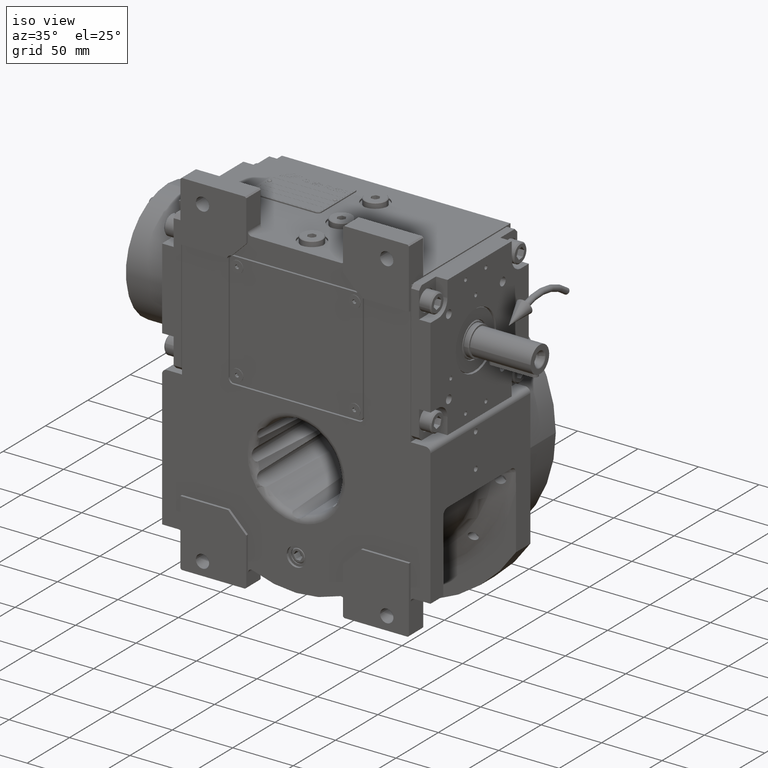
[diagram: clean part render]
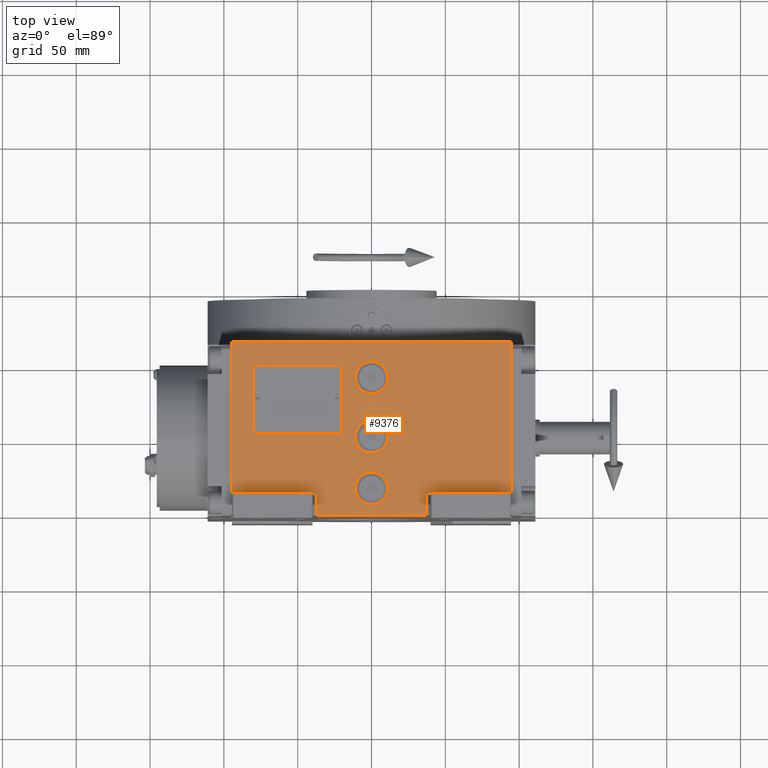
[diagram: tour spotlight — one face highlighted and labeled with its STEP entity id]
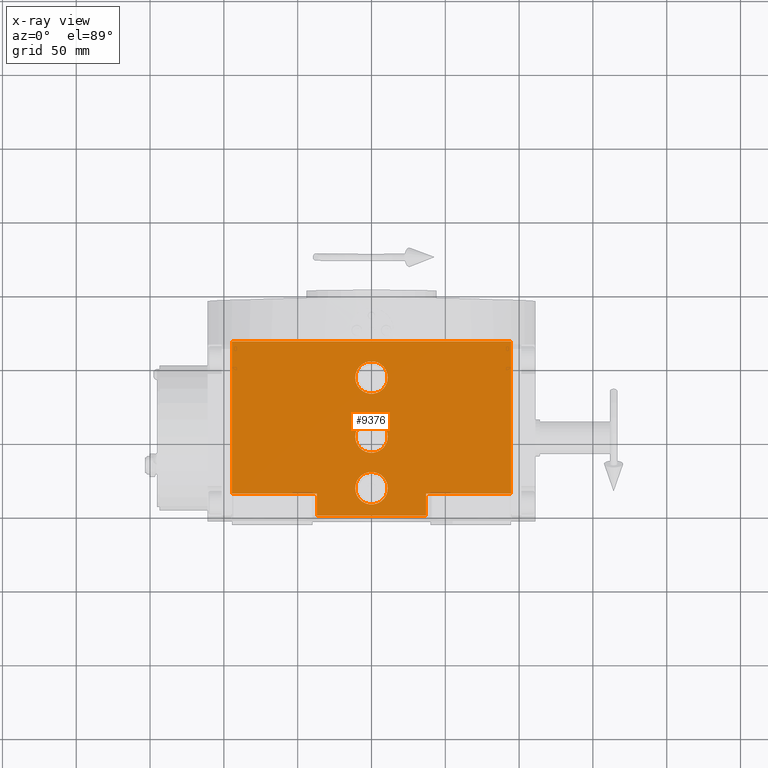
[diagram: x-ray of the same camera — body ghosted, this tour face saturated]
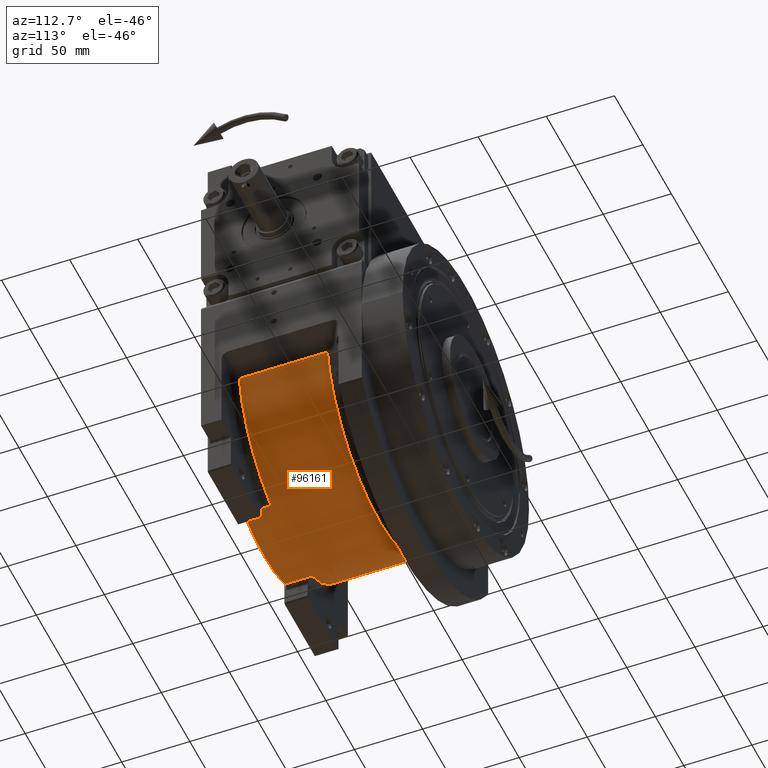
[diagram: tour spotlight — one face highlighted and labeled with its STEP entity id]
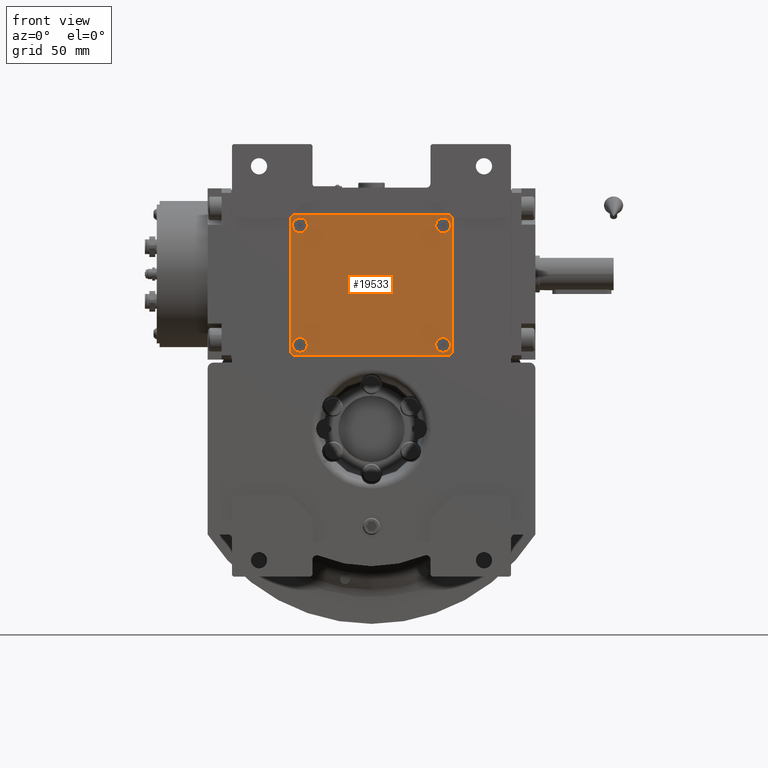
[diagram: tour spotlight — one face highlighted and labeled with its STEP entity id]
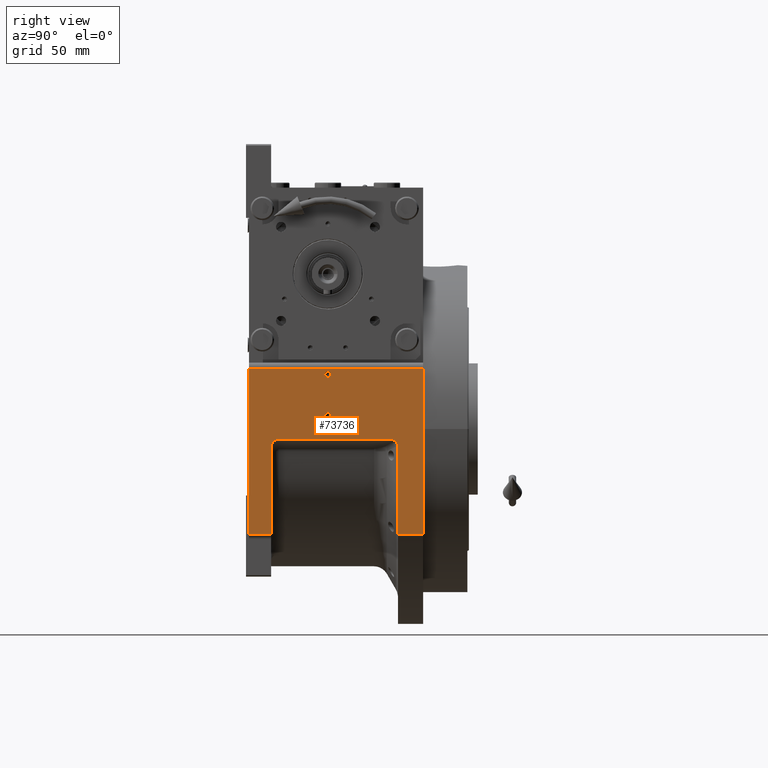
[diagram: tour spotlight — one face highlighted and labeled with its STEP entity id]
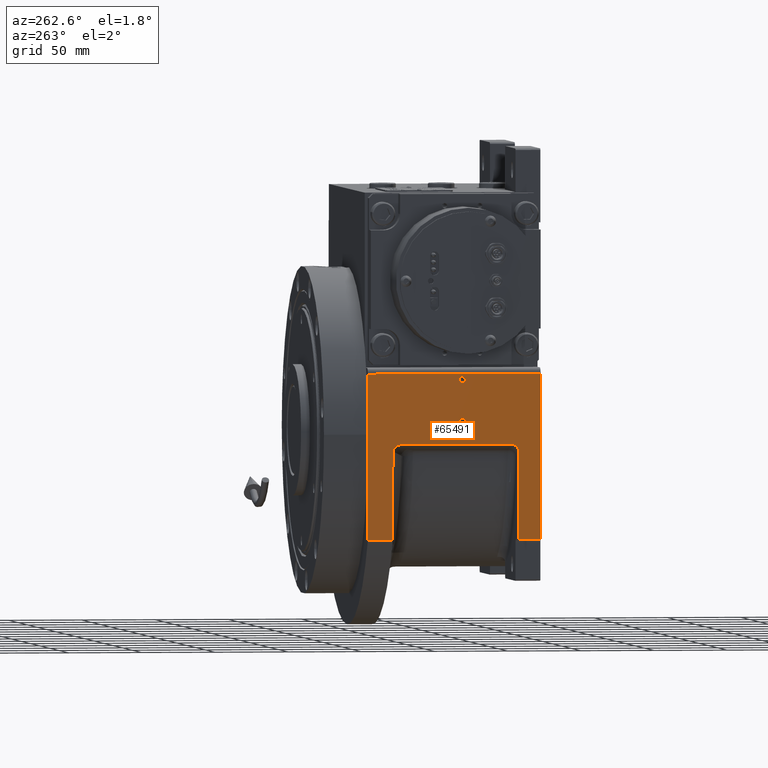
[diagram: tour spotlight — one face highlighted and labeled with its STEP entity id]
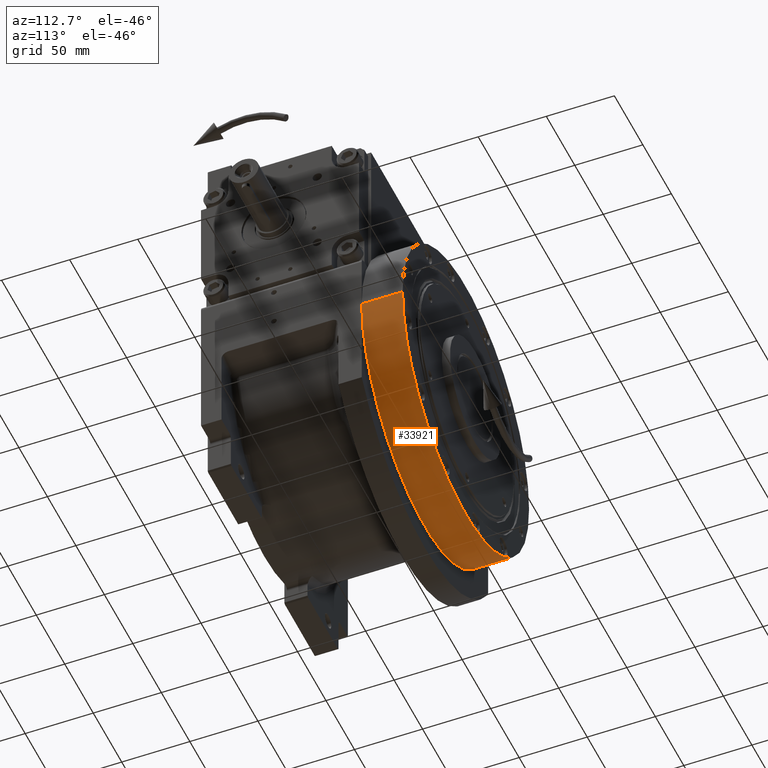
[diagram: tour spotlight — one face highlighted and labeled with its STEP entity id]
A machine part: a face-by-face anatomy tour. The part has 3052 B-rep faces; the first image is the clean iso view, then the 6 largest visible faces are spotlighted one at a time (largest first), each with its STEP entity span.

Face 1 — top view, entity #9376. An x-ray twin of the same camera follows (body ghosted, this face saturated) — the face is partly hidden behind the body. In plain terms, the highlighted planar face has unit normal (0, 0, 1).
Definition (entity closure, byte-faithful):
#550 = DIRECTION ( 'NONE',  ( 0.000000000000000000, 1.000000000000000000, 0.000000000000000000 ) ) ;
#694 = DIRECTION ( 'NONE',  ( 1.000000000000000000, 0.000000000000000000, 0.000000000000000000 ) ) ;
#1493 = EDGE_LOOP ( 'NONE', ( #21088, #25064 ) ) ;
#1671 = EDGE_CURVE ( 'NONE', #28566, #81500, #96865, .T. ) ;
#3919 = AXIS2_PLACEMENT_3D ( 'NONE', #40227, #62600, #64075 ) ;
#4296 = CARTESIAN_POINT ( 'NONE',  ( -94.50000000000000000, -38.50000000000000000, 163.5000000000000000 ) ) ;
#4766 = AXIS2_PLACEMENT_3D ( 'NONE', #54537, #38287, #694 ) ;
#5166 = ORIENTED_EDGE ( 'NONE', *, *, #32336, .T. ) ;
#5503 = CIRCLE ( 'NONE', #3919, 11.00000000000000000 ) ;
#6006 = VECTOR ( 'NONE', #37014, 1000.000000000000000 ) ;
#6876 = DIRECTION ( 'NONE',  ( 1.000000000000000000, 0.000000000000000000, 0.000000000000000000 ) ) ;
#7585 = FACE_BOUND ( 'NONE', #68663, .T. ) ;
#7671 = VERTEX_POINT ( 'NONE', #67643 ) ;
#9072 = VERTEX_POINT ( 'NONE', #69685 ) ;
#9376 = ADVANCED_FACE ( 'NONE', ( #7585, #44670, #83740, #38583 ), #54328, .T. ) ;
#10124 = CIRCLE ( 'NONE', #26359, 11.00000000000000000 ) ;
#11410 = LINE ( 'NONE', #4296, #83455 ) ;
#11775 = VERTEX_POINT ( 'NONE', #32576 ) ;
#12095 = DIRECTION ( 'NONE',  ( 0.000000000000000000, 0.000000000000000000, 1.000000000000000000 ) ) ;
#13633 = LINE ( 'NONE', #75605, #6006 ) ;
#18722 = CARTESIAN_POINT ( 'NONE',  ( 36.99999999999934630, -53.50000000000000000, 163.5000000000000000 ) ) ;
#21088 = ORIENTED_EDGE ( 'NONE', *, *, #47204, .F. ) ;
#23138 = AXIS2_PLACEMENT_3D ( 'NONE', #84250, #69060, #30437 ) ;
#24492 = DIRECTION ( 'NONE',  ( 0.000000000000000000, 1.000000000000000000, 0.000000000000000000 ) ) ;
#24903 = ORIENTED_EDGE ( 'NONE', *, *, #74221, .F. ) ;
#25064 = ORIENTED_EDGE ( 'NONE', *, *, #34865, .F. ) ;
#25173 = DIRECTION ( 'NONE',  ( -1.000000000000000000, 0.000000000000000000, 0.000000000000000000 ) ) ;
#26249 = DIRECTION ( 'NONE',  ( -1.000000000000000000, 0.000000000000000000, 0.000000000000000000 ) ) ;
#26359 = AXIS2_PLACEMENT_3D ( 'NONE', #86596, #88095, #25173 ) ;
#26813 = DIRECTION ( 'NONE',  ( 0.000000000000000000, -1.000000000000000000, 0.000000000000000000 ) ) ;
#28026 = VECTOR ( 'NONE', #34498, 1000.000000000000000 ) ;
#28566 = VERTEX_POINT ( 'NONE', #51964 ) ;
#28567 = CARTESIAN_POINT ( 'NONE',  ( -11.00000000000000000, -35.00000000000000000, 163.5000000000000000 ) ) ;
#29432 = EDGE_CURVE ( 'NONE', #9072, #55821, #91642, .T. ) ;
#30437 = DIRECTION ( 'NONE',  ( 1.000000000000000000, 0.000000000000000000, 0.000000000000000000 ) ) ;
#31105 = CARTESIAN_POINT ( 'NONE',  ( 36.99999999999934630, -38.50000000000000000, 163.5000000000000000 ) ) ;
#31861 = ORIENTED_EDGE ( 'NONE', *, *, #64037, .F. ) ;
#32135 = CIRCLE ( 'NONE', #37002, 11.00000000000000000 ) ;
#32336 = EDGE_CURVE ( 'NONE', #79259, #39439, #61509, .T. ) ;
#32576 = CARTESIAN_POINT ( 'NONE',  ( 11.00000000000000000, -1.179289943096200059E-15, 163.5000000000000000 ) ) ;
#33898 = CIRCLE ( 'NONE', #4766, 11.00000000000000000 ) ;
#34498 = DIRECTION ( 'NONE',  ( 1.000000000000000000, 0.000000000000000000, 0.000000000000000000 ) ) ;
#34865 = EDGE_CURVE ( 'NONE', #90224, #7671, #32135, .T. ) ;
#35005 = DIRECTION ( 'NONE',  ( 0.000000000000000000, 0.000000000000000000, 1.000000000000000000 ) ) ;
#35274 = DIRECTION ( 'NONE',  ( 0.000000000000000000, 1.000000000000000000, 0.000000000000000000 ) ) ;
#36020 = DIRECTION ( 'NONE',  ( 1.000000000000000000, 0.000000000000000000, 0.000000000000000000 ) ) ;
#36368 = DIRECTION ( 'NONE',  ( 0.000000000000000000, 0.000000000000000000, 1.000000000000000000 ) ) ;
#37002 = AXIS2_PLACEMENT_3D ( 'NONE', #74476, #36368, #26249 ) ;
#37014 = DIRECTION ( 'NONE',  ( 1.000000000000000000, 0.000000000000000000, 0.000000000000000000 ) ) ;
#37126 = VERTEX_POINT ( 'NONE', #70658 ) ;
#37917 = CARTESIAN_POINT ( 'NONE',  ( -94.50000000000000000, 64.50000000000000000, 163.5000000000000000 ) ) ;
#38287 = DIRECTION ( 'NONE',  ( 0.000000000000000000, 0.000000000000000000, 1.000000000000000000 ) ) ;
#38583 = FACE_OUTER_BOUND ( 'NONE', #96256, .T. ) ;
#39086 = EDGE_LOOP ( 'NONE', ( #24903, #73127 ) ) ;
#39262 = CARTESIAN_POINT ( 'NONE',  ( -36.99999999999929656, -53.50000000000000000, 163.5000000000000000 ) ) ;
#39439 = VERTEX_POINT ( 'NONE', #59586 ) ;
#40222 = EDGE_CURVE ( 'NONE', #64579, #37126, #76501, .T. ) ;
#40227 = CARTESIAN_POINT ( 'NONE',  ( 0.000000000000000000, -35.00000000000000000, 163.5000000000000000 ) ) ;
#41562 = CARTESIAN_POINT ( 'NONE',  ( 36.99999999999934630, -38.50000000000000000, 163.5000000000000000 ) ) ;
#43057 = ORIENTED_EDGE ( 'NONE', *, *, #81138, .F. ) ;
#44105 = DIRECTION ( 'NONE',  ( -1.000000000000000000, 0.000000000000000000, 0.000000000000000000 ) ) ;
#44459 = CARTESIAN_POINT ( 'NONE',  ( -94.50000000000000000, -38.50000000000000000, 163.5000000000000000 ) ) ;
#44670 = FACE_BOUND ( 'NONE', #39086, .T. ) ;
#44727 = VERTEX_POINT ( 'NONE', #31105 ) ;
#44911 = ORIENTED_EDGE ( 'NONE', *, *, #85287, .F. ) ;
#47204 = EDGE_CURVE ( 'NONE', #7671, #90224, #79431, .T. ) ;
#47653 = ORIENTED_EDGE ( 'NONE', *, *, #77430, .T. ) ;
#47847 = VERTEX_POINT ( 'NONE', #37917 ) ;
#50763 = CARTESIAN_POINT ( 'NONE',  ( 0.000000000000000000, 40.00000000000000000, 163.5000000000000000 ) ) ;
#50778 = ORIENTED_EDGE ( 'NONE', *, *, #1671, .T. ) ;
#51920 = AXIS2_PLACEMENT_3D ( 'NONE', #50763, #35005, #36020 ) ;
#51940 = EDGE_CURVE ( 'NONE', #47847, #39439, #78227, .T. ) ;
#51964 = CARTESIAN_POINT ( 'NONE',  ( -36.99999999999929656, -53.50000000000000000, 163.5000000000000000 ) ) ;
#52565 = CARTESIAN_POINT ( 'NONE',  ( -11.00000000000000000, 40.00000000000000000, 163.5000000000000000 ) ) ;
#53723 = ORIENTED_EDGE ( 'NONE', *, *, #51940, .F. ) ;
#54063 = ORIENTED_EDGE ( 'NONE', *, *, #93218, .F. ) ;
#54328 = PLANE ( 'NONE',  #23138 ) ;
#54537 = CARTESIAN_POINT ( 'NONE',  ( 0.000000000000000000, 0.000000000000000000, 163.5000000000000000 ) ) ;
#55455 = CARTESIAN_POINT ( 'NONE',  ( -36.99999999999929656, -38.50000000000000000, 163.5000000000000000 ) ) ;
#55821 = VERTEX_POINT ( 'NONE', #55455 ) ;
#59586 = CARTESIAN_POINT ( 'NONE',  ( 94.50000000000000000, 64.50000000000000000, 163.5000000000000000 ) ) ;
#60046 = CARTESIAN_POINT ( 'NONE',  ( -11.00000000000000000, 0.000000000000000000, 163.5000000000000000 ) ) ;
#60762 = ORIENTED_EDGE ( 'NONE', *, *, #29432, .T. ) ;
#61509 = LINE ( 'NONE', #76708, #80316 ) ;
#62194 = VERTEX_POINT ( 'NONE', #60046 ) ;
#62600 = DIRECTION ( 'NONE',  ( 0.000000000000000000, 0.000000000000000000, 1.000000000000000000 ) ) ;
#63398 = VECTOR ( 'NONE', #26813, 1000.000000000000000 ) ;
#64037 = EDGE_CURVE ( 'NONE', #44727, #81500, #88747, .T. ) ;
#64075 = DIRECTION ( 'NONE',  ( 1.000000000000000000, 0.000000000000000000, 0.000000000000000000 ) ) ;
#64579 = VERTEX_POINT ( 'NONE', #28567 ) ;
#65471 = CARTESIAN_POINT ( 'NONE',  ( -94.50000000000000000, 64.50000000000000000, 163.5000000000000000 ) ) ;
#66783 = ORIENTED_EDGE ( 'NONE', *, *, #87767, .F. ) ;
#67643 = CARTESIAN_POINT ( 'NONE',  ( 11.00000000000000000, 40.00000000000000000, 163.5000000000000000 ) ) ;
#68663 = EDGE_LOOP ( 'NONE', ( #43057, #44911 ) ) ;
#69060 = DIRECTION ( 'NONE',  ( 0.000000000000000000, 0.000000000000000000, 1.000000000000000000 ) ) ;
#69685 = CARTESIAN_POINT ( 'NONE',  ( -94.50000000000000000, -38.50000000000000000, 163.5000000000000000 ) ) ;
#70658 = CARTESIAN_POINT ( 'NONE',  ( 11.00000000000000000, -35.00000000000000000, 163.5000000000000000 ) ) ;
#72678 = VECTOR ( 'NONE', #24492, 1000.000000000000000 ) ;
#73127 = ORIENTED_EDGE ( 'NONE', *, *, #40222, .F. ) ;
#73574 = CARTESIAN_POINT ( 'NONE',  ( -36.99999999999929656, -53.50000000000000000, 163.5000000000000000 ) ) ;
#74221 = EDGE_CURVE ( 'NONE', #37126, #64579, #5503, .T. ) ;
#74476 = CARTESIAN_POINT ( 'NONE',  ( 0.000000000000000000, 40.00000000000000000, 163.5000000000000000 ) ) ;
#75605 = CARTESIAN_POINT ( 'NONE',  ( 36.99999999999934630, -38.50000000000000000, 163.5000000000000000 ) ) ;
#76501 = CIRCLE ( 'NONE', #81315, 11.00000000000000000 ) ;
#76708 = CARTESIAN_POINT ( 'NONE',  ( 94.50000000000000000, -38.50000000000000000, 163.5000000000000000 ) ) ;
#77430 = EDGE_CURVE ( 'NONE', #44727, #79259, #13633, .T. ) ;
#78227 = LINE ( 'NONE', #65471, #28026 ) ;
#79259 = VERTEX_POINT ( 'NONE', #87674 ) ;
#79431 = CIRCLE ( 'NONE', #51920, 11.00000000000000000 ) ;
#80316 = VECTOR ( 'NONE', #550, 1000.000000000000000 ) ;
#81138 = EDGE_CURVE ( 'NONE', #11775, #62194, #33898, .T. ) ;
#81315 = AXIS2_PLACEMENT_3D ( 'NONE', #82148, #12095, #44105 ) ;
#81500 = VERTEX_POINT ( 'NONE', #18722 ) ;
#82148 = CARTESIAN_POINT ( 'NONE',  ( 0.000000000000000000, -35.00000000000000000, 163.5000000000000000 ) ) ;
#83455 = VECTOR ( 'NONE', #35274, 1000.000000000000000 ) ;
#83740 = FACE_BOUND ( 'NONE', #1493, .T. ) ;
#84250 = CARTESIAN_POINT ( 'NONE',  ( -94.50000000000000000, -53.50000000000000000, 163.5000000000000000 ) ) ;
#85287 = EDGE_CURVE ( 'NONE', #62194, #11775, #10124, .T. ) ;
#85911 = LINE ( 'NONE', #39262, #72678 ) ;
#86596 = CARTESIAN_POINT ( 'NONE',  ( 0.000000000000000000, 0.000000000000000000, 163.5000000000000000 ) ) ;
#87674 = CARTESIAN_POINT ( 'NONE',  ( 94.50000000000000000, -38.50000000000000000, 163.5000000000000000 ) ) ;
#87767 = EDGE_CURVE ( 'NONE', #9072, #47847, #11410, .T. ) ;
#88009 = VECTOR ( 'NONE', #6876, 1000.000000000000000 ) ;
#88095 = DIRECTION ( 'NONE',  ( 0.000000000000000000, 0.000000000000000000, 1.000000000000000000 ) ) ;
#88747 = LINE ( 'NONE', #41562, #63398 ) ;
#90224 = VERTEX_POINT ( 'NONE', #52565 ) ;
#91642 = LINE ( 'NONE', #44459, #88009 ) ;
#93218 = EDGE_CURVE ( 'NONE', #28566, #55821, #85911, .T. ) ;
#96256 = EDGE_LOOP ( 'NONE', ( #50778, #31861, #47653, #5166, #53723, #66783, #60762, #54063 ) ) ;
#96375 = DIRECTION ( 'NONE',  ( 1.000000000000000000, 0.000000000000000000, 0.000000000000000000 ) ) ;
#96865 = LINE ( 'NONE', #73574, #98961 ) ;
#98961 = VECTOR ( 'NONE', #96375, 1000.000000000000000 ) ;

Face 2 — auxiliary view, entity #96161. In plain terms, the highlighted cylindrical surface (partial cylindrical patch) has radius 93 mm, axis along (0, 1, 0).
Definition (entity closure, byte-faithful):
#2215 = EDGE_CURVE ( 'NONE', #23269, #16604, #43758, .T. ) ;
#4728 = EDGE_CURVE ( 'NONE', #86585, #26345, #19196, .T. ) ;
#4732 = AXIS2_PLACEMENT_3D ( 'NONE', #15656, #92335, #78605 ) ;
#4912 = DIRECTION ( 'NONE',  ( 0.000000000000000000, -1.000000000000000000, 0.000000000000000000 ) ) ;
#5308 = ORIENTED_EDGE ( 'NONE', *, *, #4728, .T. ) ;
#5374 = DIRECTION ( 'NONE',  ( -0.3854166666666672403, 0.000000000000000000, -0.9227426472508764022 ) ) ;
#7724 = LINE ( 'NONE', #45330, #66722 ) ;
#7927 = CARTESIAN_POINT ( 'NONE',  ( 35.84375000000000000, -53.50000000000000000, -85.81506619433150718 ) ) ;
#8389 = CARTESIAN_POINT ( 'NONE',  ( 1.421085471520200056E-14, -33.50000000000000000, 1.421085471520200056E-14 ) ) ;
#10793 = DIRECTION ( 'NONE',  ( -0.3854166666666659080, 0.000000000000000000, -0.9227426472508768462 ) ) ;
#15656 = CARTESIAN_POINT ( 'NONE',  ( -4.517455316885850268E-28, -53.50000000000000000, 0.000000000000000000 ) ) ;
#16604 = VERTEX_POINT ( 'NONE', #7927 ) ;
#16617 = EDGE_LOOP ( 'NONE', ( #31248, #94134, #5308, #59883, #57955, #53307, #45025, #31914 ) ) ;
#16723 = VECTOR ( 'NONE', #71505, 1000.000000000000000 ) ;
#19196 = CIRCLE ( 'NONE', #80780, 93.00000000000001421 ) ;
#21137 = CARTESIAN_POINT ( 'NONE',  ( 1.421085471520200056E-14, -53.50000000000000000, -4.263256414560599853E-14 ) ) ;
#21967 = DIRECTION ( 'NONE',  ( 0.000000000000000000, -1.000000000000000000, 0.000000000000000000 ) ) ;
#22686 = AXIS2_PLACEMENT_3D ( 'NONE', #21137, #36860, #5374 ) ;
#23269 = VERTEX_POINT ( 'NONE', #84323 ) ;
#23543 = DIRECTION ( 'NONE',  ( 0.9865608847851539132, -1.678764654171103455E-15, -0.1633940654122239822 ) ) ;
#26345 = VERTEX_POINT ( 'NONE', #43046 ) ;
#29644 = CARTESIAN_POINT ( 'NONE',  ( -35.84375000000000000, -33.50000000000000000, -85.81506619433150718 ) ) ;
#31155 = CIRCLE ( 'NONE', #57118, 93.00000000000001421 ) ;
#31248 = ORIENTED_EDGE ( 'NONE', *, *, #2215, .F. ) ;
#31854 = LINE ( 'NONE', #42360, #62885 ) ;
#31914 = ORIENTED_EDGE ( 'NONE', *, *, #64740, .T. ) ;
#36860 = DIRECTION ( 'NONE',  ( 0.000000000000000000, -1.000000000000000000, 0.000000000000000000 ) ) ;
#38373 = DIRECTION ( 'NONE',  ( 0.9865608847878558629, 0.000000000000000000, -0.1633940653959109757 ) ) ;
#39305 = DIRECTION ( 'NONE',  ( 5.743225055535190204E-15, 1.000000000000000000, 2.439003765979129920E-14 ) ) ;
#39989 = DIRECTION ( 'NONE',  ( 0.000000000000000000, 1.000000000000000000, 0.000000000000000000 ) ) ;
#40515 = CARTESIAN_POINT ( 'NONE',  ( -35.84375000000000000, -53.50000000000000000, -85.81506619433150718 ) ) ;
#42360 = CARTESIAN_POINT ( 'NONE',  ( -91.75016228501930016, -33.50000000000000000, -15.19564808333695183 ) ) ;
#43046 = CARTESIAN_POINT ( 'NONE',  ( -91.75016228508779648, -33.50000000000000000, -15.19564808292360070 ) ) ;
#43758 = CIRCLE ( 'NONE', #22686, 92.99999999999995737 ) ;
#45025 = ORIENTED_EDGE ( 'NONE', *, *, #71211, .T. ) ;
#45330 = CARTESIAN_POINT ( 'NONE',  ( 35.84375000000000000, -33.50000000000000000, -85.81506619433150718 ) ) ;
#46167 = CYLINDRICAL_SURFACE ( 'NONE', #4732, 93.00000000000000000 ) ;
#47651 = FACE_OUTER_BOUND ( 'NONE', #16617, .T. ) ;
#48066 = CIRCLE ( 'NONE', #77197, 93.00000000000001421 ) ;
#48595 = CARTESIAN_POINT ( 'NONE',  ( 91.75016228501930016, 31.21878281274259948, -15.19564808333685058 ) ) ;
#49893 = VERTEX_POINT ( 'NONE', #48595 ) ;
#53307 = ORIENTED_EDGE ( 'NONE', *, *, #60740, .T. ) ;
#55544 = CARTESIAN_POINT ( 'NONE',  ( 1.421085471520200056E-14, 31.21878281274215183, 0.000000000000000000 ) ) ;
#57118 = AXIS2_PLACEMENT_3D ( 'NONE', #55544, #39305, #23543 ) ;
#57955 = ORIENTED_EDGE ( 'NONE', *, *, #84119, .F. ) ;
#59774 = CARTESIAN_POINT ( 'NONE',  ( 91.75016228501930016, 31.21878281274199907, -15.19564808333685058 ) ) ;
#59883 = ORIENTED_EDGE ( 'NONE', *, *, #78089, .T. ) ;
#60740 = EDGE_CURVE ( 'NONE', #49893, #99266, #82059, .T. ) ;
#62885 = VECTOR ( 'NONE', #39989, 1000.000000000000000 ) ;
#63176 = CARTESIAN_POINT ( 'NONE',  ( -91.75030103113060420, 31.21878279875124917, -15.19503959111690072 ) ) ;
#64740 = EDGE_CURVE ( 'NONE', #83264, #16604, #7724, .T. ) ;
#65012 = CARTESIAN_POINT ( 'NONE',  ( 35.84375000000000000, -33.50000000000000000, -85.81506619433150718 ) ) ;
#66722 = VECTOR ( 'NONE', #21967, 1000.000000000000000 ) ;
#67194 = VERTEX_POINT ( 'NONE', #63176 ) ;
#71211 = EDGE_CURVE ( 'NONE', #99266, #83264, #48066, .T. ) ;
#71505 = DIRECTION ( 'NONE',  ( 1.776356839400250070E-15, 1.000000000000000000, -7.105427357601000281E-16 ) ) ;
#72286 = CARTESIAN_POINT ( 'NONE',  ( -5.684341886080798963E-14, -33.50000000000000000, -4.973799150320699408E-14 ) ) ;
#77197 = AXIS2_PLACEMENT_3D ( 'NONE', #8389, #92674, #38373 ) ;
#78089 = EDGE_CURVE ( 'NONE', #26345, #67194, #31854, .T. ) ;
#78605 = DIRECTION ( 'NONE',  ( 0.000000000000000000, 0.000000000000000000, 1.000000000000000000 ) ) ;
#80780 = AXIS2_PLACEMENT_3D ( 'NONE', #72286, #96581, #10793 ) ;
#82059 = LINE ( 'NONE', #59774, #87410 ) ;
#83264 = VERTEX_POINT ( 'NONE', #65012 ) ;
#84119 = EDGE_CURVE ( 'NONE', #49893, #67194, #31155, .T. ) ;
#84323 = CARTESIAN_POINT ( 'NONE',  ( -35.84375000000000000, -53.50000000000000000, -85.81506619433150718 ) ) ;
#85736 = EDGE_CURVE ( 'NONE', #23269, #86585, #87683, .T. ) ;
#86585 = VERTEX_POINT ( 'NONE', #29644 ) ;
#87410 = VECTOR ( 'NONE', #4912, 1000.000000000000000 ) ;
#87683 = LINE ( 'NONE', #40515, #16723 ) ;
#92335 = DIRECTION ( 'NONE',  ( 0.000000000000000000, 1.000000000000000000, 0.000000000000000000 ) ) ;
#92674 = DIRECTION ( 'NONE',  ( 0.000000000000000000, 1.000000000000000000, 0.000000000000000000 ) ) ;
#94134 = ORIENTED_EDGE ( 'NONE', *, *, #85736, .T. ) ;
#96161 = ADVANCED_FACE ( 'NONE', ( #47651 ), #46167, .T. ) ;
#96581 = DIRECTION ( 'NONE',  ( 0.000000000000000000, 1.000000000000000000, 0.000000000000000000 ) ) ;
#99084 = CARTESIAN_POINT ( 'NONE',  ( 91.75016228514499517, -33.50000000000000000, -15.19564808257825028 ) ) ;
#99266 = VERTEX_POINT ( 'NONE', #99084 ) ;

Face 3 — front view, entity #19533. In plain terms, the highlighted planar face has unit normal (0, -1, -0).
Definition (entity closure, byte-faithful):
#582 = ORIENTED_EDGE ( 'NONE', *, *, #78528, .T. ) ;
#777 = CARTESIAN_POINT ( 'NONE',  ( -52.99999999999973710, 47.50000000000000000, 3.000000000000259348 ) ) ;
#887 = EDGE_CURVE ( 'NONE', #78458, #18956, #11555, .T. ) ;
#1376 = VECTOR ( 'NONE', #59687, 1000.000000000000114 ) ;
#1648 = ORIENTED_EDGE ( 'NONE', *, *, #79287, .T. ) ;
#1905 = CIRCLE ( 'NONE', #74893, 4.499999999999997335 ) ;
#2890 = VECTOR ( 'NONE', #89897, 1000.000000000000114 ) ;
#3447 = FACE_OUTER_BOUND ( 'NONE', #50843, .T. ) ;
#4552 = DIRECTION ( 'NONE',  ( -9.367723249499515189E-31, -1.000000000000000000, 0.000000000000000000 ) ) ;
#4909 = CARTESIAN_POINT ( 'NONE',  ( 53.00000000000026290, 47.50000000000000000, 3.000000000000002665 ) ) ;
#5231 = DIRECTION ( 'NONE',  ( -1.000000000000000000, -1.541976423090496028E-15, 0.000000000000000000 ) ) ;
#5240 = LINE ( 'NONE', #28089, #42659 ) ;
#5707 = EDGE_CURVE ( 'NONE', #76667, #31597, #59972, .T. ) ;
#5719 = CARTESIAN_POINT ( 'NONE',  ( 44.00000000000026290, 40.49999999999999289, 3.000000000000002665 ) ) ;
#6357 = DIRECTION ( 'NONE',  ( 9.255241265799875595E-31, 0.000000000000000000, 1.000000000000000000 ) ) ;
#6470 = VECTOR ( 'NONE', #82364, 1000.000000000000114 ) ;
#7180 = CIRCLE ( 'NONE', #46142, 4.499999999999997335 ) ;
#7547 = EDGE_CURVE ( 'NONE', #73560, #87610, #45805, .T. ) ;
#7580 = CARTESIAN_POINT ( 'NONE',  ( -55.00000000000000000, -45.49999999999973710, 3.000000000000266454 ) ) ;
#8653 = ORIENTED_EDGE ( 'NONE', *, *, #887, .F. ) ;
#9110 = DIRECTION ( 'NONE',  ( -1.000000000000000000, -1.541976423090496028E-15, 0.000000000000000000 ) ) ;
#10995 = VERTEX_POINT ( 'NONE', #7580 ) ;
#11555 = CIRCLE ( 'NONE', #65080, 4.499999999999997335 ) ;
#11949 = CARTESIAN_POINT ( 'NONE',  ( 55.00000000000026290, 45.50000000000000000, 3.000000000000002665 ) ) ;
#12226 = DIRECTION ( 'NONE',  ( 9.255241265799875595E-31, 0.000000000000000000, 1.000000000000000000 ) ) ;
#13077 = DIRECTION ( 'NONE',  ( 1.000000000000000000, 1.541976423090496028E-15, 0.000000000000000000 ) ) ;
#13368 = VERTEX_POINT ( 'NONE', #5719 ) ;
#13796 = VERTEX_POINT ( 'NONE', #65828 ) ;
#13964 = DIRECTION ( 'NONE',  ( 1.000000000000000000, 1.541976423090496028E-15, 0.000000000000000000 ) ) ;
#16052 = ORIENTED_EDGE ( 'NONE', *, *, #89020, .F. ) ;
#16159 = AXIS2_PLACEMENT_3D ( 'NONE', #74546, #90744, #13077 ) ;
#18104 = VECTOR ( 'NONE', #4552, 1000.000000000000000 ) ;
#18306 = CARTESIAN_POINT ( 'NONE',  ( -53.00000000000000000, -47.49999999999973710, 3.000000000000266454 ) ) ;
#18956 = VERTEX_POINT ( 'NONE', #60037 ) ;
#19533 = ADVANCED_FACE ( 'NONE', ( #3447, #81590, #50175, #27793, #33903 ), #66408, .T. ) ;
#20299 = CIRCLE ( 'NONE', #77060, 4.499999999999997335 ) ;
#20773 = AXIS2_PLACEMENT_3D ( 'NONE', #82092, #58796, #81100 ) ;
#20809 = CARTESIAN_POINT ( 'NONE',  ( -54.99999999999973710, 45.50000000000000000, 3.000000000000266454 ) ) ;
#21990 = DIRECTION ( 'NONE',  ( 1.000000000000000000, 9.367723249499515189E-31, 9.255241265799875595E-31 ) ) ;
#22979 = CARTESIAN_POINT ( 'NONE',  ( 48.50000000000026290, -40.50000000000000000, 2.999999999999738876 ) ) ;
#23861 = DIRECTION ( 'NONE',  ( -1.000000000000000000, -1.541976423090496028E-15, 0.000000000000000000 ) ) ;
#24939 = ORIENTED_EDGE ( 'NONE', *, *, #26872, .T. ) ;
#26872 = EDGE_CURVE ( 'NONE', #29543, #81166, #81491, .T. ) ;
#27475 = LINE ( 'NONE', #82799, #2890 ) ;
#27793 = FACE_BOUND ( 'NONE', #70214, .T. ) ;
#28089 = CARTESIAN_POINT ( 'NONE',  ( -53.00000000000000000, -47.49999999999973710, 3.000000000000266454 ) ) ;
#28729 = EDGE_CURVE ( 'NONE', #18956, #78458, #55530, .T. ) ;
#28744 = CARTESIAN_POINT ( 'NONE',  ( -43.99999999999973710, 40.49999999999999289, 3.000000000000009770 ) ) ;
#29186 = EDGE_CURVE ( 'NONE', #13368, #46445, #84689, .T. ) ;
#29543 = VERTEX_POINT ( 'NONE', #30221 ) ;
#29751 = EDGE_CURVE ( 'NONE', #55976, #29543, #5240, .T. ) ;
#30221 = CARTESIAN_POINT ( 'NONE',  ( 53.00000000000000000, -47.50000000000000000, 3.000000000000002665 ) ) ;
#31470 = DIRECTION ( 'NONE',  ( 9.255241265799875595E-31, 0.000000000000000000, 1.000000000000000000 ) ) ;
#31514 = CIRCLE ( 'NONE', #88234, 4.499999999999997335 ) ;
#31597 = VERTEX_POINT ( 'NONE', #93168 ) ;
#32239 = LINE ( 'NONE', #777, #72340 ) ;
#32542 = ORIENTED_EDGE ( 'NONE', *, *, #29751, .T. ) ;
#32958 = DIRECTION ( 'NONE',  ( 9.255241265799875595E-31, 0.000000000000000000, 1.000000000000000000 ) ) ;
#33188 = ORIENTED_EDGE ( 'NONE', *, *, #5707, .F. ) ;
#33903 = FACE_BOUND ( 'NONE', #39088, .T. ) ;
#34370 = LINE ( 'NONE', #41479, #66111 ) ;
#34545 = ORIENTED_EDGE ( 'NONE', *, *, #84702, .T. ) ;
#36665 = CARTESIAN_POINT ( 'NONE',  ( 53.00000000000026290, 47.50000000000000000, 3.000000000000002665 ) ) ;
#37173 = DIRECTION ( 'NONE',  ( -1.000000000000000000, -9.367723249499515189E-31, -9.255241265799875595E-31 ) ) ;
#37915 = EDGE_LOOP ( 'NONE', ( #73202, #39129 ) ) ;
#39088 = EDGE_LOOP ( 'NONE', ( #16052, #82966 ) ) ;
#39129 = ORIENTED_EDGE ( 'NONE', *, *, #29186, .F. ) ;
#39291 = AXIS2_PLACEMENT_3D ( 'NONE', #22979, #84398, #69715 ) ;
#41479 = CARTESIAN_POINT ( 'NONE',  ( 55.00000000000000000, -45.50000000000000000, 3.000000000000002665 ) ) ;
#41909 = ORIENTED_EDGE ( 'NONE', *, *, #28729, .F. ) ;
#42067 = EDGE_LOOP ( 'NONE', ( #33188, #79471 ) ) ;
#42659 = VECTOR ( 'NONE', #21990, 1000.000000000000000 ) ;
#44108 = EDGE_CURVE ( 'NONE', #46445, #13368, #20299, .T. ) ;
#45805 = LINE ( 'NONE', #36665, #79739 ) ;
#46142 = AXIS2_PLACEMENT_3D ( 'NONE', #78671, #32958, #9110 ) ;
#46265 = ORIENTED_EDGE ( 'NONE', *, *, #71226, .T. ) ;
#46445 = VERTEX_POINT ( 'NONE', #96278 ) ;
#50175 = FACE_BOUND ( 'NONE', #42067, .T. ) ;
#50558 = EDGE_CURVE ( 'NONE', #31597, #76667, #1905, .T. ) ;
#50843 = EDGE_LOOP ( 'NONE', ( #1648, #86165, #90919, #46265, #34545, #582, #32542, #24939 ) ) ;
#55530 = CIRCLE ( 'NONE', #39291, 4.499999999999997335 ) ;
#55976 = VERTEX_POINT ( 'NONE', #18306 ) ;
#56963 = VERTEX_POINT ( 'NONE', #11949 ) ;
#58416 = LINE ( 'NONE', #20809, #18104 ) ;
#58796 = DIRECTION ( 'NONE',  ( -9.255241265799875595E-31, -1.734010775707216474E-60, 1.000000000000000000 ) ) ;
#59168 = DIRECTION ( 'NONE',  ( 9.255241265799875595E-31, 0.000000000000000000, 1.000000000000000000 ) ) ;
#59687 = DIRECTION ( 'NONE',  ( 0.7071067811865474617, 0.7071067811865474617, 9.367723249499506431E-31 ) ) ;
#59972 = CIRCLE ( 'NONE', #16159, 4.499999999999997335 ) ;
#60037 = CARTESIAN_POINT ( 'NONE',  ( 53.00000000000026290, -40.50000000000000000, 2.999999999999738876 ) ) ;
#60972 = CARTESIAN_POINT ( 'NONE',  ( 48.50000000000026290, 40.49999999999999289, 3.000000000000002665 ) ) ;
#61149 = CARTESIAN_POINT ( 'NONE',  ( 55.00000000000000000, -45.50000000000000000, 3.000000000000002665 ) ) ;
#63325 = EDGE_CURVE ( 'NONE', #56963, #73560, #89973, .T. ) ;
#64350 = DIRECTION ( 'NONE',  ( 9.367723249499515189E-31, 1.000000000000000000, 0.000000000000000000 ) ) ;
#65080 = AXIS2_PLACEMENT_3D ( 'NONE', #82396, #74825, #5231 ) ;
#65828 = CARTESIAN_POINT ( 'NONE',  ( -43.99999999999973710, -40.49999999999973710, 2.999999999999995559 ) ) ;
#66111 = VECTOR ( 'NONE', #64350, 1000.000000000000000 ) ;
#66301 = CARTESIAN_POINT ( 'NONE',  ( 53.00000000000000000, -47.50000000000000000, 3.000000000000002665 ) ) ;
#66408 = PLANE ( 'NONE',  #20773 ) ;
#69715 = DIRECTION ( 'NONE',  ( 1.000000000000000000, 1.541976423090496028E-15, 0.000000000000000000 ) ) ;
#70214 = EDGE_LOOP ( 'NONE', ( #41909, #8653 ) ) ;
#70494 = VERTEX_POINT ( 'NONE', #86773 ) ;
#71226 = EDGE_CURVE ( 'NONE', #87610, #76730, #32239, .T. ) ;
#72340 = VECTOR ( 'NONE', #94164, 1000.000000000000114 ) ;
#72788 = CARTESIAN_POINT ( 'NONE',  ( 55.00000000000026290, 45.50000000000000000, 3.000000000000002665 ) ) ;
#73202 = ORIENTED_EDGE ( 'NONE', *, *, #44108, .F. ) ;
#73560 = VERTEX_POINT ( 'NONE', #4909 ) ;
#73700 = DIRECTION ( 'NONE',  ( -1.000000000000000000, -1.541976423090496028E-15, 0.000000000000000000 ) ) ;
#74546 = CARTESIAN_POINT ( 'NONE',  ( -48.49999999999973710, 40.49999999999999289, 3.000000000000259348 ) ) ;
#74677 = EDGE_CURVE ( 'NONE', #70494, #13796, #7180, .T. ) ;
#74825 = DIRECTION ( 'NONE',  ( 9.255241265799875595E-31, 0.000000000000000000, 1.000000000000000000 ) ) ;
#74893 = AXIS2_PLACEMENT_3D ( 'NONE', #81772, #12226, #73700 ) ;
#74909 = DIRECTION ( 'NONE',  ( 1.000000000000000000, 1.541976423090496028E-15, 0.000000000000000000 ) ) ;
#75937 = CARTESIAN_POINT ( 'NONE',  ( 48.50000000000026290, 40.49999999999999289, 3.000000000000002665 ) ) ;
#76667 = VERTEX_POINT ( 'NONE', #28744 ) ;
#76730 = VERTEX_POINT ( 'NONE', #87042 ) ;
#77060 = AXIS2_PLACEMENT_3D ( 'NONE', #75937, #6357, #13964 ) ;
#78458 = VERTEX_POINT ( 'NONE', #86907 ) ;
#78528 = EDGE_CURVE ( 'NONE', #10995, #55976, #27475, .T. ) ;
#78671 = CARTESIAN_POINT ( 'NONE',  ( -48.49999999999973710, -40.49999999999973710, 3.000000000000002665 ) ) ;
#78982 = CARTESIAN_POINT ( 'NONE',  ( -52.99999999999973710, 47.50000000000000000, 3.000000000000259348 ) ) ;
#79287 = EDGE_CURVE ( 'NONE', #81166, #56963, #34370, .T. ) ;
#79471 = ORIENTED_EDGE ( 'NONE', *, *, #50558, .F. ) ;
#79739 = VECTOR ( 'NONE', #37173, 1000.000000000000000 ) ;
#81100 = DIRECTION ( 'NONE',  ( 1.000000000000000000, 9.367723249499515189E-31, 9.255241265799875595E-31 ) ) ;
#81166 = VERTEX_POINT ( 'NONE', #61149 ) ;
#81474 = CARTESIAN_POINT ( 'NONE',  ( -48.49999999999973710, -40.49999999999973710, 3.000000000000002665 ) ) ;
#81491 = LINE ( 'NONE', #66301, #1376 ) ;
#81590 = FACE_BOUND ( 'NONE', #37915, .T. ) ;
#81772 = CARTESIAN_POINT ( 'NONE',  ( -48.49999999999973710, 40.49999999999999289, 3.000000000000259348 ) ) ;
#82092 = CARTESIAN_POINT ( 'NONE',  ( 0.000000000000000000, 0.000000000000000000, 3.000000000000002665 ) ) ;
#82364 = DIRECTION ( 'NONE',  ( -0.7071067811865474617, 0.7071067811865474617, -3.697785493223490101E-32 ) ) ;
#82396 = CARTESIAN_POINT ( 'NONE',  ( 48.50000000000026290, -40.50000000000000000, 2.999999999999738876 ) ) ;
#82799 = CARTESIAN_POINT ( 'NONE',  ( -55.00000000000000000, -45.49999999999973710, 3.000000000000266454 ) ) ;
#82966 = ORIENTED_EDGE ( 'NONE', *, *, #74677, .F. ) ;
#84398 = DIRECTION ( 'NONE',  ( 9.255241265799875595E-31, 0.000000000000000000, 1.000000000000000000 ) ) ;
#84689 = CIRCLE ( 'NONE', #92816, 4.499999999999997335 ) ;
#84702 = EDGE_CURVE ( 'NONE', #76730, #10995, #58416, .T. ) ;
#86165 = ORIENTED_EDGE ( 'NONE', *, *, #63325, .T. ) ;
#86773 = CARTESIAN_POINT ( 'NONE',  ( -52.99999999999973710, -40.49999999999973710, 3.000000000000002665 ) ) ;
#86907 = CARTESIAN_POINT ( 'NONE',  ( 44.00000000000026290, -40.50000000000000000, 2.999999999999995559 ) ) ;
#87042 = CARTESIAN_POINT ( 'NONE',  ( -54.99999999999973710, 45.50000000000000000, 3.000000000000266454 ) ) ;
#87610 = VERTEX_POINT ( 'NONE', #78982 ) ;
#88234 = AXIS2_PLACEMENT_3D ( 'NONE', #81474, #59168, #74909 ) ;
#89020 = EDGE_CURVE ( 'NONE', #13796, #70494, #31514, .T. ) ;
#89897 = DIRECTION ( 'NONE',  ( 0.7071067811865474617, -0.7071067811865474617, 3.697785493223490101E-32 ) ) ;
#89973 = LINE ( 'NONE', #72788, #6470 ) ;
#90744 = DIRECTION ( 'NONE',  ( 9.255241265799875595E-31, 0.000000000000000000, 1.000000000000000000 ) ) ;
#90919 = ORIENTED_EDGE ( 'NONE', *, *, #7547, .T. ) ;
#92816 = AXIS2_PLACEMENT_3D ( 'NONE', #60972, #31470, #23861 ) ;
#93168 = CARTESIAN_POINT ( 'NONE',  ( -52.99999999999973710, 40.49999999999999289, 3.000000000000259348 ) ) ;
#94164 = DIRECTION ( 'NONE',  ( -0.7071067811865474617, -0.7071067811865474617, -9.367723249499506431E-31 ) ) ;
#96278 = CARTESIAN_POINT ( 'NONE',  ( 53.00000000000026290, 40.49999999999999289, 3.000000000000002665 ) ) ;

Face 4 — right view, entity #73736. In plain terms, the highlighted planar face has unit normal (1, 0, -0).
Definition (entity closure, byte-faithful):
#669 = CARTESIAN_POINT ( 'NONE',  ( 111.0000000000000284, 43.94558323494667462, -7.245586984187109891 ) ) ;
#1308 = DIRECTION ( 'NONE',  ( 1.000000000000000000, 0.000000000000000000, -6.102469138343910279E-16 ) ) ;
#1780 = CARTESIAN_POINT ( 'NONE',  ( 111.0000000000000000, 47.50000000000000000, -71.43528539874399996 ) ) ;
#2156 = CARTESIAN_POINT ( 'NONE',  ( 110.9999999999999858, 46.71432597020061195, -9.644020489599460788 ) ) ;
#3404 = ORIENTED_EDGE ( 'NONE', *, *, #35914, .F. ) ;
#4041 = CARTESIAN_POINT ( 'NONE',  ( 110.9999999999999574, 47.26250817921272329, -12.53135113091263264 ) ) ;
#4600 = DIRECTION ( 'NONE',  ( 0.000000000000000000, 1.000000000000000000, 0.000000000000000000 ) ) ;
#4952 = VECTOR ( 'NONE', #26296, 1000.000000000000000 ) ;
#5367 = CIRCLE ( 'NONE', #81525, 2.100000000000000089 ) ;
#5548 = ORIENTED_EDGE ( 'NONE', *, *, #83532, .T. ) ;
#6602 = CARTESIAN_POINT ( 'NONE',  ( 111.0000000000000000, -3.552713678800499352E-15, 9.000000000000000000 ) ) ;
#7921 = LINE ( 'NONE', #85071, #41365 ) ;
#8431 = VECTOR ( 'NONE', #53501, 1000.000000000000000 ) ;
#8837 = CARTESIAN_POINT ( 'NONE',  ( 111.0000000000000000, 47.50000000000000000, -71.43528539874399996 ) ) ;
#9258 = CARTESIAN_POINT ( 'NONE',  ( 110.9999999999999858, 47.22446425046381080, -11.11687756950517070 ) ) ;
#9612 = CARTESIAN_POINT ( 'NONE',  ( 111.0000000000000000, -33.50000000000000000, -7.000000000000000000 ) ) ;
#10644 = EDGE_CURVE ( 'NONE', #45495, #60101, #49990, .T. ) ;
#11527 = VECTOR ( 'NONE', #78411, 1000.000000000000000 ) ;
#11650 = CARTESIAN_POINT ( 'NONE',  ( 110.9999998869266022, 47.24161831933449918, -11.75654022255562126 ) ) ;
#12144 = CARTESIAN_POINT ( 'NONE',  ( 110.9999999999999147, 47.39592956473512686, -17.94582316151957713 ) ) ;
#12275 = CARTESIAN_POINT ( 'NONE',  ( 111.0000000000000000, 2.100000000000000089, 37.00000000000000000 ) ) ;
#13886 = CARTESIAN_POINT ( 'NONE',  ( 111.0000000000000000, -38.50000000000000000, -71.43528539874399996 ) ) ;
#14144 = LINE ( 'NONE', #83700, #14521 ) ;
#14521 = VECTOR ( 'NONE', #76609, 1000.000000000000000 ) ;
#15423 = EDGE_CURVE ( 'NONE', #58809, #86256, #98324, .T. ) ;
#16156 = VERTEX_POINT ( 'NONE', #36014 ) ;
#16396 = CARTESIAN_POINT ( 'NONE',  ( 110.9999999999999716, 46.78306930847411138, -9.786252467980729008 ) ) ;
#17134 = DIRECTION ( 'NONE',  ( 0.000000000000000000, -1.000000000000000000, 0.000000000000000000 ) ) ;
#17377 = CARTESIAN_POINT ( 'NONE',  ( 110.9999999999999574, 45.57333248245377177, -8.163234121736138604 ) ) ;
#17399 = EDGE_CURVE ( 'NONE', #90764, #33259, #26282, .T. ) ;
#17545 = ORIENTED_EDGE ( 'NONE', *, *, #15423, .T. ) ;
#18016 = CARTESIAN_POINT ( 'NONE',  ( 110.9999998869266022, 47.24161831933449918, -11.75654022255562126 ) ) ;
#18443 = LINE ( 'NONE', #8837, #11527 ) ;
#18655 = CARTESIAN_POINT ( 'NONE',  ( 111.0000000000000000, 64.50000000000000000, 41.00000000000000000 ) ) ;
#19790 = CARTESIAN_POINT ( 'NONE',  ( 110.9999999999999574, 47.38500262563848509, -17.48094355212767326 ) ) ;
#20797 = CARTESIAN_POINT ( 'NONE',  ( 110.9999999999999574, 47.49300976463167956, -23.37757664004382363 ) ) ;
#21364 = LINE ( 'NONE', #74180, #66502 ) ;
#23489 = B_SPLINE_CURVE_WITH_KNOTS ( 'NONE', 3,
 ( #11650, #4041, #67006, #59392, #35011, #65996, #96919, #89323, #19790, #12144, #81694, #20797, #43137 ),
 .UNSPECIFIED., .F., .F.,
 ( 4, 1, 1, 1, 2, 2, 1, 1, 4 ),
 ( 0.000000000000000000, 0.2499999999999993339, 0.3749999999999991673, 0.3906249999999991673, 0.3984374999999988898, 0.4062499999999986122, 0.4374999999999987788, 0.4999999999999991118, 1.000000000000000000 ),
 .UNSPECIFIED. ) ;
#23716 = EDGE_CURVE ( 'NONE', #34332, #33259, #7921, .T. ) ;
#23967 = AXIS2_PLACEMENT_3D ( 'NONE', #91641, #85528, #68841 ) ;
#24512 = CARTESIAN_POINT ( 'NONE',  ( 110.9999999999999716, 46.60653992690171776, -9.434012384678485574 ) ) ;
#24764 = DIRECTION ( 'NONE',  ( 1.000000000000000000, 0.000000000000000000, 0.000000000000000000 ) ) ;
#25000 = CARTESIAN_POINT ( 'NONE',  ( 110.9999999999999858, 45.32914735765071867, -7.964596415155019038 ) ) ;
#25655 = EDGE_CURVE ( 'NONE', #48644, #80200, #93606, .T. ) ;
#26282 = LINE ( 'NONE', #18655, #87140 ) ;
#26296 = DIRECTION ( 'NONE',  ( -6.319570704518690450E-16, 0.000000000000000000, -1.000000000000000000 ) ) ;
#27998 = DIRECTION ( 'NONE',  ( 7.194288269028780008E-16, 0.000000000000000000, 1.000000000000000000 ) ) ;
#29611 = VERTEX_POINT ( 'NONE', #1780 ) ;
#29852 = CARTESIAN_POINT ( 'NONE',  ( 111.0000000000000000, 64.50000000000000000, -71.43528539874399996 ) ) ;
#30008 = CARTESIAN_POINT ( 'NONE',  ( 111.0000000000000000, -3.774758283725534604E-15, 37.00000000000000000 ) ) ;
#31628 = CARTESIAN_POINT ( 'NONE',  ( 110.9999999999999858, 44.80922033797410364, -7.621655160203046009 ) ) ;
#32127 = CARTESIAN_POINT ( 'NONE',  ( 110.9999999999999716, 46.32234190798379103, -8.967372511752580877 ) ) ;
#33259 = VERTEX_POINT ( 'NONE', #87429 ) ;
#34332 = VERTEX_POINT ( 'NONE', #63495 ) ;
#34644 = DIRECTION ( 'NONE',  ( 1.000000000000000000, 0.000000000000000000, 0.000000000000000000 ) ) ;
#35011 = CARTESIAN_POINT ( 'NONE',  ( 110.9999999999999858, 47.37382107352491545, -17.01630155678829581 ) ) ;
#35203 = AXIS2_PLACEMENT_3D ( 'NONE', #90453, #34644, #65632 ) ;
#35914 = EDGE_CURVE ( 'NONE', #29611, #16156, #14144, .T. ) ;
#36014 = CARTESIAN_POINT ( 'NONE',  ( 111.0000000000000000, 47.50000000000000000, -25.44626115736659955 ) ) ;
#37246 = CARTESIAN_POINT ( 'NONE',  ( 111.0000000000000000, -53.50000000000000000, -71.43528539874399996 ) ) ;
#38660 = EDGE_CURVE ( 'NONE', #39152, #58809, #21364, .T. ) ;
#38925 = DIRECTION ( 'NONE',  ( -6.102469138343910279E-16, 0.000000000000000000, -1.000000000000000000 ) ) ;
#39152 = VERTEX_POINT ( 'NONE', #99253 ) ;
#39765 = CARTESIAN_POINT ( 'NONE',  ( 110.9999999999999858, 47.09297238319260259, -10.50863868843677196 ) ) ;
#39901 = PLANE ( 'NONE',  #50835 ) ;
#40263 = CARTESIAN_POINT ( 'NONE',  ( 110.9999998869266022, 47.24161831933449918, -11.75654022255562126 ) ) ;
#40597 = EDGE_CURVE ( 'NONE', #34332, #82597, #61118, .T. ) ;
#40610 = CARTESIAN_POINT ( 'NONE',  ( 110.9999999999999574, -36.42893218813446765, -7.000000000000003553 ) ) ;
#41062 = CARTESIAN_POINT ( 'NONE',  ( 111.0000000000000000, 64.50000000000000000, 41.00000000000000000 ) ) ;
#41365 = VECTOR ( 'NONE', #92193, 1000.000000000000000 ) ;
#43137 = CARTESIAN_POINT ( 'NONE',  ( 111.0000000000000000, 47.50000000000000000, -25.44626115736659955 ) ) ;
#44124 = EDGE_LOOP ( 'NONE', ( #67536, #78298 ) ) ;
#44600 = ORIENTED_EDGE ( 'NONE', *, *, #17399, .T. ) ;
#44689 = DIRECTION ( 'NONE',  ( 0.000000000000000000, 1.000000000000000000, -1.652117596168387559E-15 ) ) ;
#45068 = EDGE_CURVE ( 'NONE', #53302, #39152, #76857, .T. ) ;
#45495 = VERTEX_POINT ( 'NONE', #72333 ) ;
#46528 = FACE_OUTER_BOUND ( 'NONE', #93699, .T. ) ;
#47281 = CARTESIAN_POINT ( 'NONE',  ( 111.0000000000000000, -2.100000000000000089, 9.000000000000000000 ) ) ;
#47517 = FACE_BOUND ( 'NONE', #44124, .T. ) ;
#47874 = CARTESIAN_POINT ( 'NONE',  ( 110.9999999999999716, 43.19493036065947678, -7.045511204842088482 ) ) ;
#48644 = VERTEX_POINT ( 'NONE', #12275 ) ;
#49990 = CIRCLE ( 'NONE', #98554, 2.100000000000000089 ) ;
#50835 = AXIS2_PLACEMENT_3D ( 'NONE', #86560, #1308, #38925 ) ;
#51392 = CARTESIAN_POINT ( 'NONE',  ( 111.0000000000000000, -38.50000000000000000, -12.17638090205032064 ) ) ;
#51766 = CARTESIAN_POINT ( 'NONE',  ( 111.0000000000000000, -2.100000000000000089, 37.00000000000000000 ) ) ;
#53302 = VERTEX_POINT ( 'NONE', #51392 ) ;
#53501 = DIRECTION ( 'NONE',  ( 0.000000000000000000, 1.000000000000000000, 0.000000000000000000 ) ) ;
#56007 = CARTESIAN_POINT ( 'NONE',  ( 110.9999999998199911, 42.40620941354220008, -7.000000000048170357 ) ) ;
#56799 = CARTESIAN_POINT ( 'NONE',  ( 111.0000000000000000, 64.50000000000000000, 41.00000000000000000 ) ) ;
#57354 = CARTESIAN_POINT ( 'NONE',  ( 110.9999999998199911, 42.40620941354220008, -7.000000000048170357 ) ) ;
#58809 = VERTEX_POINT ( 'NONE', #57354 ) ;
#59392 = CARTESIAN_POINT ( 'NONE',  ( 110.9999999999999858, 47.35262548411426309, -16.14045418600772308 ) ) ;
#60101 = VERTEX_POINT ( 'NONE', #47281 ) ;
#61118 = LINE ( 'NONE', #37246, #8431 ) ;
#61468 = DIRECTION ( 'NONE',  ( 1.000000000000000000, -1.144832152701696034E-29, -6.767073673905710947E-15 ) ) ;
#61740 = ORIENTED_EDGE ( 'NONE', *, *, #62272, .F. ) ;
#62272 = EDGE_CURVE ( 'NONE', #90764, #70584, #63432, .T. ) ;
#62630 = CARTESIAN_POINT ( 'NONE',  ( 111.0000000000000000, 46.02269117539044885, -8.607473829627073414 ) ) ;
#63432 = LINE ( 'NONE', #56799, #4952 ) ;
#63495 = CARTESIAN_POINT ( 'NONE',  ( 111.0000000000000000, -53.50000000000000000, -71.43528539874399996 ) ) ;
#64112 = CARTESIAN_POINT ( 'NONE',  ( 111.0000000000000000, 43.64749740373729026, -7.156724411048934087 ) ) ;
#64420 = EDGE_CURVE ( 'NONE', #29611, #70584, #18443, .T. ) ;
#65632 = DIRECTION ( 'NONE',  ( 0.000000000000000000, 1.000000000000000000, 0.000000000000000000 ) ) ;
#65996 = CARTESIAN_POINT ( 'NONE',  ( 110.9999999999999574, 47.37721023959501565, -17.15660303781627150 ) ) ;
#66502 = VECTOR ( 'NONE', #4600, 1000.000000000000000 ) ;
#66942 = ORIENTED_EDGE ( 'NONE', *, *, #64420, .T. ) ;
#67006 = CARTESIAN_POINT ( 'NONE',  ( 110.9999999999999432, 47.30109702303251140, -14.03657177442504000 ) ) ;
#67112 = CARTESIAN_POINT ( 'NONE',  ( 111.0000000000000000, -38.50000000000000000, -71.43528539874399996 ) ) ;
#67536 = ORIENTED_EDGE ( 'NONE', *, *, #10644, .F. ) ;
#68841 = DIRECTION ( 'NONE',  ( 0.000000000000000000, -1.000000000000000000, 1.652117596168387559E-15 ) ) ;
#70584 = VERTEX_POINT ( 'NONE', #29852 ) ;
#72333 = CARTESIAN_POINT ( 'NONE',  ( 111.0000000000000000, 2.100000000000000089, 9.000000000000000000 ) ) ;
#73186 = EDGE_CURVE ( 'NONE', #82597, #53302, #97026, .T. ) ;
#73369 = EDGE_CURVE ( 'NONE', #80200, #48644, #5367, .T. ) ;
#73736 = ADVANCED_FACE ( 'NONE', ( #47517, #78468, #46528 ), #39901, .T. ) ;
#74180 = CARTESIAN_POINT ( 'NONE',  ( 111.0000000000000000, -33.50000000000000000, -6.999999999999920064 ) ) ;
#74811 = ORIENTED_EDGE ( 'NONE', *, *, #45068, .T. ) ;
#75030 = EDGE_LOOP ( 'NONE', ( #91205, #94876 ) ) ;
#75220 = ORIENTED_EDGE ( 'NONE', *, *, #38660, .T. ) ;
#76609 = DIRECTION ( 'NONE',  ( 6.180107079730629528E-16, 0.000000000000000000, 1.000000000000000000 ) ) ;
#76707 = VECTOR ( 'NONE', #27998, 1000.000000000000000 ) ;
#76857 =( BOUNDED_CURVE ( )  B_SPLINE_CURVE ( 3, ( #89147, #78675, #40610, #9612 ),
 .UNSPECIFIED., .F., .F. ) 
 B_SPLINE_CURVE_WITH_KNOTS ( ( 4, 4 ),
 ( 1.570796326796059850, 3.141592653590837614 ),
 .UNSPECIFIED. ) 
 CURVE ( )  GEOMETRIC_REPRESENTATION_ITEM ( )  RATIONAL_B_SPLINE_CURVE ( ( 1.000000000000000000, 0.8047378541243930261, 0.8047378541243930261, 1.000000000000000000 ) ) 
 REPRESENTATION_ITEM ( '' )  );
#78298 = ORIENTED_EDGE ( 'NONE', *, *, #92621, .F. ) ;
#78411 = DIRECTION ( 'NONE',  ( 0.000000000000000000, 1.000000000000000000, 8.359326303060000099E-16 ) ) ;
#78468 = FACE_BOUND ( 'NONE', #75030, .T. ) ;
#78675 = CARTESIAN_POINT ( 'NONE',  ( 110.9999999999999574, -38.49999999999984368, -9.144127173638265660 ) ) ;
#78827 = CARTESIAN_POINT ( 'NONE',  ( 110.9999999999999858, 44.09122816550473800, -7.296733665612587849 ) ) ;
#80200 = VERTEX_POINT ( 'NONE', #51766 ) ;
#81525 = AXIS2_PLACEMENT_3D ( 'NONE', #30008, #24764, #17134 ) ;
#81694 = CARTESIAN_POINT ( 'NONE',  ( 110.9999999999999289, 47.46019542777067812, -20.85051949887152745 ) ) ;
#82597 = VERTEX_POINT ( 'NONE', #13886 ) ;
#83532 = EDGE_CURVE ( 'NONE', #86256, #16156, #23489, .T. ) ;
#83700 = CARTESIAN_POINT ( 'NONE',  ( 111.0000000000000000, 47.50000000000000000, -71.43528539874399996 ) ) ;
#84552 = ORIENTED_EDGE ( 'NONE', *, *, #23716, .F. ) ;
#85071 = CARTESIAN_POINT ( 'NONE',  ( 111.0000000000000000, -53.50000000000000000, -71.43528539874399996 ) ) ;
#85528 = DIRECTION ( 'NONE',  ( 1.000000000000000000, 0.000000000000000000, 0.000000000000000000 ) ) ;
#86256 = VERTEX_POINT ( 'NONE', #18016 ) ;
#86560 = CARTESIAN_POINT ( 'NONE',  ( 111.0000000000000000, -53.50000000000000000, 45.00000000000000000 ) ) ;
#86920 = CARTESIAN_POINT ( 'NONE',  ( 111.0000000000000000, 44.53223597866741557, -7.476123301251936581 ) ) ;
#87140 = VECTOR ( 'NONE', #96801, 1000.000000000000000 ) ;
#87301 = ORIENTED_EDGE ( 'NONE', *, *, #40597, .T. ) ;
#87429 = CARTESIAN_POINT ( 'NONE',  ( 111.0000000000000000, -53.50000000000000000, 41.00000000000000000 ) ) ;
#89147 = CARTESIAN_POINT ( 'NONE',  ( 111.0000000000000000, -38.50000000000000000, -12.17638090205032064 ) ) ;
#89323 = CARTESIAN_POINT ( 'NONE',  ( 111.0000000000000000, 47.38034144301978046, -17.28637658354777784 ) ) ;
#90453 = CARTESIAN_POINT ( 'NONE',  ( 111.0000000000000000, -3.552713678800499352E-15, 37.00000000000000000 ) ) ;
#90764 = VERTEX_POINT ( 'NONE', #41062 ) ;
#91205 = ORIENTED_EDGE ( 'NONE', *, *, #25655, .F. ) ;
#91641 = CARTESIAN_POINT ( 'NONE',  ( 111.0000000000000000, -3.774758283725534604E-15, 9.000000000000000000 ) ) ;
#92193 = DIRECTION ( 'NONE',  ( 6.319570704518680589E-16, 0.000000000000000000, 1.000000000000000000 ) ) ;
#92621 = EDGE_CURVE ( 'NONE', #60101, #45495, #98490, .T. ) ;
#93549 = CARTESIAN_POINT ( 'NONE',  ( 110.9999999999999858, 42.72604842879050580, -7.000539959136501622 ) ) ;
#93606 = CIRCLE ( 'NONE', #35203, 2.100000000000000089 ) ;
#93699 = EDGE_LOOP ( 'NONE', ( #84552, #87301, #95051, #74811, #75220, #17545, #5548, #3404, #66942, #61740, #44600 ) ) ;
#94876 = ORIENTED_EDGE ( 'NONE', *, *, #73369, .F. ) ;
#95037 = CARTESIAN_POINT ( 'NONE',  ( 111.0000000000000000, 46.81641276431729892, -9.859722511584925186 ) ) ;
#95051 = ORIENTED_EDGE ( 'NONE', *, *, #73186, .T. ) ;
#96801 = DIRECTION ( 'NONE',  ( 0.000000000000000000, -1.000000000000000000, 0.000000000000000000 ) ) ;
#96919 = CARTESIAN_POINT ( 'NONE',  ( 110.9999999999999716, 47.37947912676571605, -17.25058397870262894 ) ) ;
#97026 = LINE ( 'NONE', #67112, #76707 ) ;
#98324 = B_SPLINE_CURVE_WITH_KNOTS ( 'NONE', 3,
 ( #56007, #93549, #47874, #64112, #669, #78827, #86920, #31628, #25000, #17377, #62630, #32127, #24512, #2156, #16396, #95037, #39765, #9258, #40263 ),
 .UNSPECIFIED., .F., .F.,
 ( 4, 1, 2, 2, 2, 2, 1, 1, 2, 2, 4 ),
 ( 0.000000000000000000, 0.1250000000000034972, 0.1875000000000038580, 0.2500000000000042188, 0.3750000000000024425, 0.5000000000000007772, 0.6249999999999996669, 0.6874999999999983347, 0.7187499999999980016, 0.7499999999999976685, 1.000000000000000000 ),
 .UNSPECIFIED. ) ;
#98490 = CIRCLE ( 'NONE', #23967, 2.100000000000000089 ) ;
#98554 = AXIS2_PLACEMENT_3D ( 'NONE', #6602, #61468, #44689 ) ;
#99253 = CARTESIAN_POINT ( 'NONE',  ( 111.0000000000000000, -33.50000000000000000, -7.000000000000000000 ) ) ;

Face 5 — auxiliary view, entity #65491. In plain terms, the highlighted planar face has unit normal (-1, 0, 0).
Definition (entity closure, byte-faithful):
#763 = ORIENTED_EDGE ( 'NONE', *, *, #19002, .F. ) ;
#1025 = CARTESIAN_POINT ( 'NONE',  ( -111.0000000000000000, -38.50000000000000000, -12.17638090205042189 ) ) ;
#1303 = ORIENTED_EDGE ( 'NONE', *, *, #82035, .F. ) ;
#1680 = VECTOR ( 'NONE', #57250, 1000.000000000000000 ) ;
#1864 = ORIENTED_EDGE ( 'NONE', *, *, #66721, .F. ) ;
#2238 = CARTESIAN_POINT ( 'NONE',  ( -111.0000000000000000, 47.50000000000000000, -71.43528539874399996 ) ) ;
#2677 = CARTESIAN_POINT ( 'NONE',  ( -111.0000000000000000, -2.100000000000000089, 37.00000000000000000 ) ) ;
#4042 = ORIENTED_EDGE ( 'NONE', *, *, #81420, .F. ) ;
#6020 = CARTESIAN_POINT ( 'NONE',  ( -111.0000000000000284, 44.80537002266407853, -7.628406989121505610 ) ) ;
#7225 = VERTEX_POINT ( 'NONE', #2677 ) ;
#8138 = DIRECTION ( 'NONE',  ( 0.000000000000000000, 0.000000000000000000, -1.000000000000000000 ) ) ;
#8501 = AXIS2_PLACEMENT_3D ( 'NONE', #22422, #52404, #38167 ) ;
#11021 = CARTESIAN_POINT ( 'NONE',  ( -111.0000000000000000, 64.50000000000000000, 41.00000000000000000 ) ) ;
#11536 = VERTEX_POINT ( 'NONE', #95220 ) ;
#12125 = CARTESIAN_POINT ( 'NONE',  ( -111.0000000000000000, -38.50000000000000000, -71.43528539874409944 ) ) ;
#12770 = FACE_OUTER_BOUND ( 'NONE', #59186, .T. ) ;
#12923 = AXIS2_PLACEMENT_3D ( 'NONE', #52764, #45135, #68510 ) ;
#13474 = VECTOR ( 'NONE', #49050, 1000.000000000000000 ) ;
#14134 = ORIENTED_EDGE ( 'NONE', *, *, #50530, .F. ) ;
#14500 = CARTESIAN_POINT ( 'NONE',  ( -111.0000000000000000, 2.100000000000000089, 9.000000000000000000 ) ) ;
#15453 = ORIENTED_EDGE ( 'NONE', *, *, #47547, .T. ) ;
#15732 = LINE ( 'NONE', #46742, #47304 ) ;
#16131 = AXIS2_PLACEMENT_3D ( 'NONE', #79405, #80383, #95117 ) ;
#16287 = VERTEX_POINT ( 'NONE', #31892 ) ;
#17650 = CARTESIAN_POINT ( 'NONE',  ( -111.0000000000000142, 47.39775283363938030, -18.01025571059393826 ) ) ;
#18304 = VERTEX_POINT ( 'NONE', #11021 ) ;
#19002 = EDGE_CURVE ( 'NONE', #18304, #35973, #24435, .T. ) ;
#19872 = CARTESIAN_POINT ( 'NONE',  ( -111.0000000000000000, 47.50000000000000000, -71.43528539874399996 ) ) ;
#21780 = CARTESIAN_POINT ( 'NONE',  ( -111.0000000000000000, 45.20819138357048672, -7.866231648914137509 ) ) ;
#22143 = AXIS2_PLACEMENT_3D ( 'NONE', #39289, #70260, #54019 ) ;
#22392 = EDGE_LOOP ( 'NONE', ( #75176, #61660 ) ) ;
#22422 = CARTESIAN_POINT ( 'NONE',  ( -111.0000000000000000, -53.50000000000000000, -71.43528539874399996 ) ) ;
#22581 = ORIENTED_EDGE ( 'NONE', *, *, #28367, .T. ) ;
#24154 = CARTESIAN_POINT ( 'NONE',  ( -111.0000000000000000, -3.552713678800499352E-15, 37.00000000000000000 ) ) ;
#24435 = LINE ( 'NONE', #25406, #41789 ) ;
#24680 = CARTESIAN_POINT ( 'NONE',  ( -111.0000000000000000, -53.50000000000000000, -71.43528539874409944 ) ) ;
#25268 = CARTESIAN_POINT ( 'NONE',  ( -110.9999999999999858, 47.45869610671962846, -20.70783326501533494 ) ) ;
#25406 = CARTESIAN_POINT ( 'NONE',  ( -111.0000000000000000, 64.50000000000000000, 41.00000000000000000 ) ) ;
#27516 = LINE ( 'NONE', #80826, #38801 ) ;
#27879 = CARTESIAN_POINT ( 'NONE',  ( -110.9999999999999574, 46.24926438878902246, -8.831662360591032268 ) ) ;
#28212 =( BOUNDED_CURVE ( )  B_SPLINE_CURVE ( 3, ( #39624, #93416, #39147, #1025 ),
 .UNSPECIFIED., .F., .F. ) 
 B_SPLINE_CURVE_WITH_KNOTS ( ( 4, 4 ),
 ( 3.141592653590854045, 4.712388980385856740 ),
 .UNSPECIFIED. ) 
 CURVE ( )  GEOMETRIC_REPRESENTATION_ITEM ( )  RATIONAL_B_SPLINE_CURVE ( ( 1.000000000000000000, 0.8047378541243400685, 0.8047378541243400685, 1.000000000000000000 ) ) 
 REPRESENTATION_ITEM ( '' )  );
#28359 = CARTESIAN_POINT ( 'NONE',  ( -111.0000000000000000, -38.50000000000000000, -12.17638090205040058 ) ) ;
#28367 = EDGE_CURVE ( 'NONE', #16287, #71176, #77764, .T. ) ;
#29192 = CARTESIAN_POINT ( 'NONE',  ( -111.0000000000000000, 47.50000000000000000, -25.44626115736729588 ) ) ;
#29890 = CARTESIAN_POINT ( 'NONE',  ( -111.0000000000000000, 44.38355727844160015, -7.415682013062533606 ) ) ;
#30548 = ORIENTED_EDGE ( 'NONE', *, *, #73859, .T. ) ;
#31401 = CARTESIAN_POINT ( 'NONE',  ( -110.9999999999999716, 47.35640947859300098, -16.28572579493090444 ) ) ;
#31892 = CARTESIAN_POINT ( 'NONE',  ( -111.0000000000000000, -2.100000000000000089, 9.000000000000000000 ) ) ;
#32888 = CARTESIAN_POINT ( 'NONE',  ( -111.0000000000000568, 47.38398366112607363, -17.43201616111707608 ) ) ;
#33158 = CARTESIAN_POINT ( 'NONE',  ( -111.0000000000000000, -33.50000000000000000, -7.000000000000000000 ) ) ;
#33227 = EDGE_CURVE ( 'NONE', #71176, #16287, #86976, .T. ) ;
#33278 = LINE ( 'NONE', #24680, #13474 ) ;
#35973 = VERTEX_POINT ( 'NONE', #71989 ) ;
#36012 = CARTESIAN_POINT ( 'NONE',  ( -111.0000000000000142, 43.04624886168785025, -7.001080695584134261 ) ) ;
#38167 = DIRECTION ( 'NONE',  ( 0.000000000000000000, 0.000000000000000000, 1.000000000000000000 ) ) ;
#38801 = VECTOR ( 'NONE', #74245, 1000.000000000000000 ) ;
#39147 = CARTESIAN_POINT ( 'NONE',  ( -111.0000000000000284, -38.50000000000000000, -9.144127173638402439 ) ) ;
#39183 = VECTOR ( 'NONE', #89406, 1000.000000000000000 ) ;
#39289 = CARTESIAN_POINT ( 'NONE',  ( -111.0000000000000000, -3.552713678800499352E-15, 9.000000000000000000 ) ) ;
#39541 = CARTESIAN_POINT ( 'NONE',  ( -111.0000000000000000, 47.50000000000000000, -25.44626115736729588 ) ) ;
#39624 = CARTESIAN_POINT ( 'NONE',  ( -111.0000000000000000, -33.50000000000000000, -7.000000000000000000 ) ) ;
#39992 = EDGE_CURVE ( 'NONE', #35973, #77564, #15732, .T. ) ;
#40032 = CARTESIAN_POINT ( 'NONE',  ( -111.0000000000000000, 47.37801887890174868, -17.18315811918595060 ) ) ;
#41480 = EDGE_CURVE ( 'NONE', #65794, #60228, #43614, .T. ) ;
#41789 = VECTOR ( 'NONE', #63544, 1000.000000000000000 ) ;
#42619 = CARTESIAN_POINT ( 'NONE',  ( -110.9999998426041969, 47.24161804384319652, -11.75654023702319861 ) ) ;
#43614 = LINE ( 'NONE', #28359, #65328 ) ;
#43624 = CARTESIAN_POINT ( 'NONE',  ( -111.0000000000000000, 47.03723638803381846, -10.44364842193959575 ) ) ;
#45135 = DIRECTION ( 'NONE',  ( 1.000000000000000000, 0.000000000000000000, 0.000000000000000000 ) ) ;
#45138 = CARTESIAN_POINT ( 'NONE',  ( -111.0000000000000142, 45.57238403428445395, -8.162200170006535416 ) ) ;
#46742 = CARTESIAN_POINT ( 'NONE',  ( -111.0000000000000000, -53.50000000000000000, 41.00000000000000000 ) ) ;
#46848 = ORIENTED_EDGE ( 'NONE', *, *, #39992, .F. ) ;
#47304 = VECTOR ( 'NONE', #8138, 1000.000000000000000 ) ;
#47547 = EDGE_CURVE ( 'NONE', #98869, #11536, #65259, .T. ) ;
#49050 = DIRECTION ( 'NONE',  ( 0.000000000000000000, 1.000000000000000000, 0.000000000000000000 ) ) ;
#49654 = VERTEX_POINT ( 'NONE', #62186 ) ;
#50530 = EDGE_CURVE ( 'NONE', #99794, #49654, #99019, .T. ) ;
#50651 = EDGE_CURVE ( 'NONE', #67166, #65794, #28212, .T. ) ;
#51787 = AXIS2_PLACEMENT_3D ( 'NONE', #24154, #76979, #99800 ) ;
#52404 = DIRECTION ( 'NONE',  ( -1.000000000000000000, 0.000000000000000000, 0.000000000000000000 ) ) ;
#52764 = CARTESIAN_POINT ( 'NONE',  ( -111.0000000000000000, -3.552713678800499352E-15, 37.00000000000000000 ) ) ;
#53414 = FACE_BOUND ( 'NONE', #22392, .T. ) ;
#54019 = DIRECTION ( 'NONE',  ( 0.000000000000000000, 1.000000000000000000, 1.652117596168387559E-15 ) ) ;
#54781 = CARTESIAN_POINT ( 'NONE',  ( -110.9999999999999858, 47.49184152199143227, -23.26125549203704068 ) ) ;
#55601 = LINE ( 'NONE', #2238, #57361 ) ;
#56752 = LINE ( 'NONE', #88171, #1680 ) ;
#57250 = DIRECTION ( 'NONE',  ( 0.000000000000000000, 0.000000000000000000, 1.000000000000000000 ) ) ;
#57361 = VECTOR ( 'NONE', #95623, 1000.000000000000000 ) ;
#59186 = EDGE_LOOP ( 'NONE', ( #1303, #14134, #30548, #15453, #74533, #4042, #61221, #75512, #1864, #46848, #763 ) ) ;
#59372 = CARTESIAN_POINT ( 'NONE',  ( -111.0000000000000142, 46.87834784565706059, -10.00509416193215095 ) ) ;
#59941 = CARTESIAN_POINT ( 'NONE',  ( -111.0000000000000000, 47.50000000000000000, -71.43528539874399996 ) ) ;
#60228 = VERTEX_POINT ( 'NONE', #12125 ) ;
#60318 = EDGE_CURVE ( 'NONE', #11536, #74888, #98129, .T. ) ;
#60907 = EDGE_CURVE ( 'NONE', #7225, #88717, #95523, .T. ) ;
#61221 = ORIENTED_EDGE ( 'NONE', *, *, #50651, .T. ) ;
#61660 = ORIENTED_EDGE ( 'NONE', *, *, #60907, .T. ) ;
#62186 = CARTESIAN_POINT ( 'NONE',  ( -111.0000000000000000, 64.50000000000000000, -71.43528539874399996 ) ) ;
#63343 = EDGE_LOOP ( 'NONE', ( #93420, #22581 ) ) ;
#63544 = DIRECTION ( 'NONE',  ( 0.000000000000000000, -1.000000000000000000, 0.000000000000000000 ) ) ;
#63881 = CARTESIAN_POINT ( 'NONE',  ( -111.0000000000000142, 47.38804427955523835, -17.60168279826294579 ) ) ;
#65259 = B_SPLINE_CURVE_WITH_KNOTS ( 'NONE', 3,
 ( #39541, #54781, #25268, #17650, #71016, #63881, #85711, #32888, #40032, #31401, #70040, #93334, #78600 ),
 .UNSPECIFIED., .F., .F.,
 ( 4, 1, 1, 2, 2, 1, 1, 1, 4 ),
 ( 0.000000000000000000, 0.4999999999999906741, 0.5624999999999891198, 0.5703124999999893419, 0.5781249999999896749, 0.5937499999999901190, 0.6249999999999905631, 0.7499999999999935607, 1.000000000000000000 ),
 .UNSPECIFIED. ) ;
#65328 = VECTOR ( 'NONE', #96884, 1000.000000000000000 ) ;
#65491 = ADVANCED_FACE ( 'NONE', ( #83328, #53414, #12770 ), #67130, .T. ) ;
#65794 = VERTEX_POINT ( 'NONE', #95435 ) ;
#66721 = EDGE_CURVE ( 'NONE', #77564, #60228, #33278, .T. ) ;
#67130 = PLANE ( 'NONE',  #8501 ) ;
#67166 = VERTEX_POINT ( 'NONE', #33158 ) ;
#68510 = DIRECTION ( 'NONE',  ( 0.000000000000000000, 1.000000000000000000, 0.000000000000000000 ) ) ;
#68513 = CARTESIAN_POINT ( 'NONE',  ( -110.9999999999999574, 46.59747468668511772, -9.345669636517394352 ) ) ;
#70040 = CARTESIAN_POINT ( 'NONE',  ( -111.0000000000000284, 47.30739276393136095, -14.28307552350015541 ) ) ;
#70260 = DIRECTION ( 'NONE',  ( 1.000000000000000000, 0.000000000000000000, 0.000000000000000000 ) ) ;
#71016 = CARTESIAN_POINT ( 'NONE',  ( -111.0000000000000284, 47.38981798226070907, -17.67600262140464196 ) ) ;
#71176 = VERTEX_POINT ( 'NONE', #14500 ) ;
#71989 = CARTESIAN_POINT ( 'NONE',  ( -111.0000000000000000, -53.50000000000000000, 41.00000000000000000 ) ) ;
#73859 = EDGE_CURVE ( 'NONE', #99794, #98869, #55601, .T. ) ;
#74100 = CARTESIAN_POINT ( 'NONE',  ( -111.0000000000000142, 47.17730589702550503, -10.96906219321990150 ) ) ;
#74245 = DIRECTION ( 'NONE',  ( 0.000000000000000000, 1.000000000000000000, 0.000000000000000000 ) ) ;
#74533 = ORIENTED_EDGE ( 'NONE', *, *, #60318, .T. ) ;
#74608 = CARTESIAN_POINT ( 'NONE',  ( -111.0000000000000284, 43.65692249831813143, -7.119924177572298341 ) ) ;
#74888 = VERTEX_POINT ( 'NONE', #83656 ) ;
#75176 = ORIENTED_EDGE ( 'NONE', *, *, #94752, .T. ) ;
#75512 = ORIENTED_EDGE ( 'NONE', *, *, #41480, .T. ) ;
#76112 = CARTESIAN_POINT ( 'NONE',  ( -110.9999999993382005, 42.40620941626179530, -7.000000000177450055 ) ) ;
#76979 = DIRECTION ( 'NONE',  ( 1.000000000000000000, 0.000000000000000000, 0.000000000000000000 ) ) ;
#77564 = VERTEX_POINT ( 'NONE', #85520 ) ;
#77764 = CIRCLE ( 'NONE', #16131, 2.100000000000000089 ) ;
#78600 = CARTESIAN_POINT ( 'NONE',  ( -110.9999998426041969, 47.24161804384319652, -11.75654023702319861 ) ) ;
#79405 = CARTESIAN_POINT ( 'NONE',  ( -111.0000000000000000, -3.552713678800499352E-15, 9.000000000000000000 ) ) ;
#80383 = DIRECTION ( 'NONE',  ( 1.000000000000000000, 0.000000000000000000, 0.000000000000000000 ) ) ;
#80826 = CARTESIAN_POINT ( 'NONE',  ( -111.0000000000000000, -33.50000000000000000, -7.000000000000000000 ) ) ;
#81420 = EDGE_CURVE ( 'NONE', #67166, #74888, #27516, .T. ) ;
#82035 = EDGE_CURVE ( 'NONE', #49654, #18304, #56752, .T. ) ;
#83328 = FACE_BOUND ( 'NONE', #63343, .T. ) ;
#83656 = CARTESIAN_POINT ( 'NONE',  ( -110.9999999993382005, 42.40620941626179530, -7.000000000177450055 ) ) ;
#83699 = CARTESIAN_POINT ( 'NONE',  ( -111.0000000000000142, 46.96112643920030649, -10.22283934410663697 ) ) ;
#85520 = CARTESIAN_POINT ( 'NONE',  ( -111.0000000000000000, -53.50000000000000000, -71.43528539874409944 ) ) ;
#85711 = CARTESIAN_POINT ( 'NONE',  ( -111.0000000000000142, 47.38697793714037942, -17.55712914402924696 ) ) ;
#86976 = CIRCLE ( 'NONE', #22143, 2.100000000000000089 ) ;
#88171 = CARTESIAN_POINT ( 'NONE',  ( -111.0000000000000000, 64.50000000000000000, -71.43528539874399996 ) ) ;
#88717 = VERTEX_POINT ( 'NONE', #92229 ) ;
#89406 = DIRECTION ( 'NONE',  ( 0.000000000000000000, 1.000000000000000000, 0.000000000000000000 ) ) ;
#89795 = CARTESIAN_POINT ( 'NONE',  ( -111.0000000000000142, 47.23304483909880958, -11.43688986518032635 ) ) ;
#91810 = CARTESIAN_POINT ( 'NONE',  ( -110.9999999999999858, 44.52823829090591090, -7.482778073993033630 ) ) ;
#92229 = CARTESIAN_POINT ( 'NONE',  ( -111.0000000000000000, 2.100000000000000089, 37.00000000000000000 ) ) ;
#93334 = CARTESIAN_POINT ( 'NONE',  ( -111.0000000000000284, 47.26671036820440008, -12.69711666045169274 ) ) ;
#93416 = CARTESIAN_POINT ( 'NONE',  ( -111.0000000000000142, -36.42893218813447476, -6.999999999999989342 ) ) ;
#93420 = ORIENTED_EDGE ( 'NONE', *, *, #33227, .T. ) ;
#94752 = EDGE_CURVE ( 'NONE', #88717, #7225, #95612, .T. ) ;
#95117 = DIRECTION ( 'NONE',  ( 0.000000000000000000, -1.000000000000000000, -1.652117596168387559E-15 ) ) ;
#95220 = CARTESIAN_POINT ( 'NONE',  ( -110.9999998426041969, 47.24161804384319652, -11.75654023702319861 ) ) ;
#95435 = CARTESIAN_POINT ( 'NONE',  ( -111.0000000000000000, -38.50000000000000000, -12.17638090205042189 ) ) ;
#95523 = CIRCLE ( 'NONE', #51787, 2.100000000000000089 ) ;
#95612 = CIRCLE ( 'NONE', #12923, 2.100000000000000089 ) ;
#95623 = DIRECTION ( 'NONE',  ( 0.000000000000000000, 0.000000000000000000, 1.000000000000000000 ) ) ;
#96884 = DIRECTION ( 'NONE',  ( 0.000000000000000000, 0.000000000000000000, -1.000000000000000000 ) ) ;
#98129 = B_SPLINE_CURVE_WITH_KNOTS ( 'NONE', 3,
 ( #42619, #89795, #74100, #43624, #83699, #98918, #59372, #68513, #27879, #45138, #21780, #6020, #91810, #29890, #74608, #36012, #76112 ),
 .UNSPECIFIED., .F., .F.,
 ( 4, 1, 1, 2, 2, 2, 1, 2, 2, 4 ),
 ( 0.000000000000000000, 0.1249999999999996114, 0.1874999999999987788, 0.2187499999999980571, 0.2499999999999973077, 0.4999999999999975575, 0.6249999999999972244, 0.6874999999999972244, 0.7499999999999972244, 1.000000000000000000 ),
 .UNSPECIFIED. ) ;
#98869 = VERTEX_POINT ( 'NONE', #29192 ) ;
#98918 = CARTESIAN_POINT ( 'NONE',  ( -111.0000000000000142, 46.90681310458562336, -10.07660401504372771 ) ) ;
#99019 = LINE ( 'NONE', #19872, #39183 ) ;
#99794 = VERTEX_POINT ( 'NONE', #59941 ) ;
#99800 = DIRECTION ( 'NONE',  ( 0.000000000000000000, -1.000000000000000000, 0.000000000000000000 ) ) ;

Face 6 — auxiliary view, entity #33921. In plain terms, the highlighted cylindrical surface (partial cylindrical patch) has radius 111 mm, axis along (0, -1, 0).
Definition (entity closure, byte-faithful):
#638 = CARTESIAN_POINT ( 'NONE',  ( 0.000000000000000000, 0.000000000000000000, 30.00000000000000000 ) ) ;
#1051 = CARTESIAN_POINT ( 'NONE',  ( -111.0000000000000000, 1.359357947053561722E-14, 0.000000000000000000 ) ) ;
#3539 = ORIENTED_EDGE ( 'NONE', *, *, #34420, .F. ) ;
#4832 = VERTEX_POINT ( 'NONE', #74288 ) ;
#5041 = DIRECTION ( 'NONE',  ( 0.000000000000000000, 0.000000000000000000, -1.000000000000000000 ) ) ;
#5329 = VECTOR ( 'NONE', #87787, 1000.000000000000000 ) ;
#7738 = DIRECTION ( 'NONE',  ( 1.000000000000000000, 0.000000000000000000, 0.000000000000000000 ) ) ;
#12239 = EDGE_LOOP ( 'NONE', ( #87951, #97141, #3539, #75599 ) ) ;
#15345 = DIRECTION ( 'NONE',  ( 0.000000000000000000, 0.000000000000000000, 1.000000000000000000 ) ) ;
#15780 = CARTESIAN_POINT ( 'NONE',  ( 0.000000000000000000, 0.000000000000000000, 0.000000000000000000 ) ) ;
#19783 = DIRECTION ( 'NONE',  ( 1.000000000000000000, 0.000000000000000000, 0.000000000000000000 ) ) ;
#25857 = LINE ( 'NONE', #56862, #5329 ) ;
#33921 = ADVANCED_FACE ( 'NONE', ( #98925 ), #52278, .T. ) ;
#34420 = EDGE_CURVE ( 'NONE', #4832, #78826, #25857, .T. ) ;
#35168 = AXIS2_PLACEMENT_3D ( 'NONE', #36019, #5041, #19783 ) ;
#36019 = CARTESIAN_POINT ( 'NONE',  ( 0.000000000000000000, 0.000000000000000000, 0.000000000000000000 ) ) ;
#38441 = VECTOR ( 'NONE', #87802, 1000.000000000000000 ) ;
#42112 = CARTESIAN_POINT ( 'NONE',  ( 111.0000000000000000, 0.000000000000000000, 30.00000000000000000 ) ) ;
#46801 = DIRECTION ( 'NONE',  ( 0.000000000000000000, 0.000000000000000000, 1.000000000000000000 ) ) ;
#52278 = CYLINDRICAL_SURFACE ( 'NONE', #35168, 111.0000000000000000 ) ;
#54198 = CIRCLE ( 'NONE', #97880, 111.0000000000000000 ) ;
#56862 = CARTESIAN_POINT ( 'NONE',  ( 111.0000000000000000, 0.000000000000000000, 0.000000000000000000 ) ) ;
#57147 = AXIS2_PLACEMENT_3D ( 'NONE', #15780, #46801, #79235 ) ;
#64295 = CARTESIAN_POINT ( 'NONE',  ( -111.0000000000000000, 4.531193156845210737E-15, 30.00000000000000000 ) ) ;
#65641 = EDGE_CURVE ( 'NONE', #4832, #79749, #99210, .T. ) ;
#72601 = LINE ( 'NONE', #1051, #38441 ) ;
#74145 = EDGE_CURVE ( 'NONE', #78826, #89852, #54198, .T. ) ;
#74288 = CARTESIAN_POINT ( 'NONE',  ( 111.0000000000000000, 0.000000000000000000, 0.000000000000000000 ) ) ;
#75599 = ORIENTED_EDGE ( 'NONE', *, *, #65641, .T. ) ;
#76989 = EDGE_CURVE ( 'NONE', #79749, #89852, #72601, .T. ) ;
#78826 = VERTEX_POINT ( 'NONE', #42112 ) ;
#79235 = DIRECTION ( 'NONE',  ( 1.000000000000000000, 0.000000000000000000, 0.000000000000000000 ) ) ;
#79749 = VERTEX_POINT ( 'NONE', #96652 ) ;
#87787 = DIRECTION ( 'NONE',  ( 0.000000000000000000, 0.000000000000000000, 1.000000000000000000 ) ) ;
#87802 = DIRECTION ( 'NONE',  ( 0.000000000000000000, 0.000000000000000000, 1.000000000000000000 ) ) ;
#87951 = ORIENTED_EDGE ( 'NONE', *, *, #76989, .T. ) ;
#89852 = VERTEX_POINT ( 'NONE', #64295 ) ;
#96652 = CARTESIAN_POINT ( 'NONE',  ( -111.0000000000000000, 4.531193156845210737E-15, 0.000000000000000000 ) ) ;
#97141 = ORIENTED_EDGE ( 'NONE', *, *, #74145, .F. ) ;
#97880 = AXIS2_PLACEMENT_3D ( 'NONE', #638, #15345, #7738 ) ;
#98925 = FACE_OUTER_BOUND ( 'NONE', #12239, .T. ) ;
#99210 = CIRCLE ( 'NONE', #57147, 111.0000000000000000 ) ;